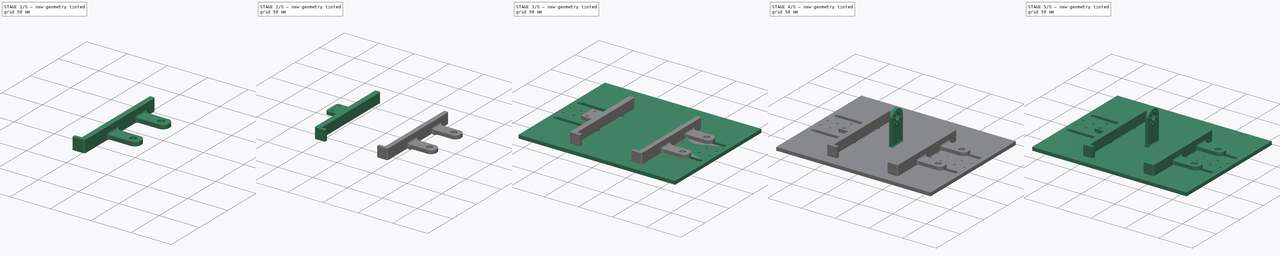
[diagram: build sequence overview — one tinted view per stage of 5, left to right]
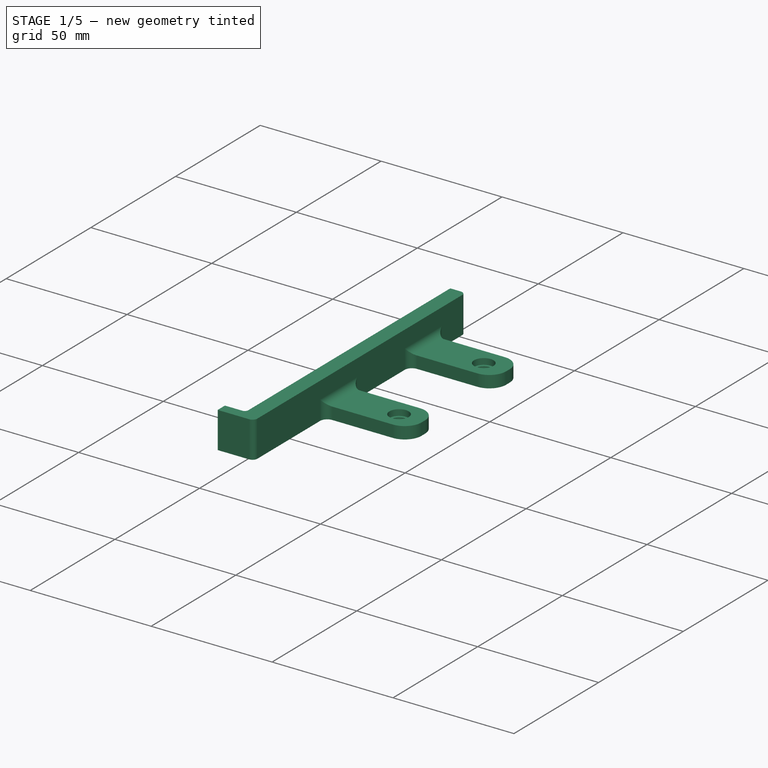
[diagram: stage 1 of 5 — iso view after this stage's code; geometry added in this stage tinted green]
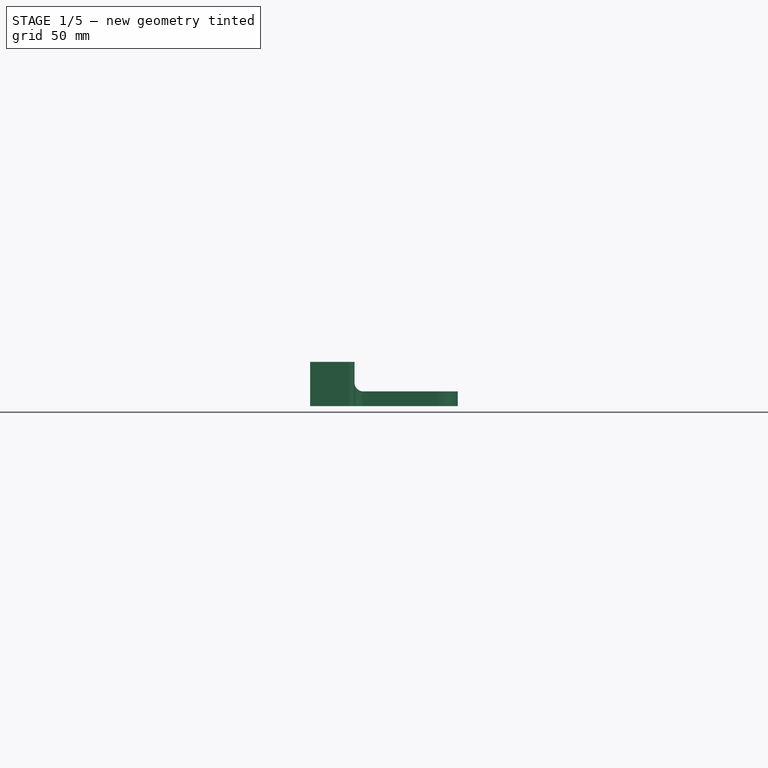
[diagram: stage 1 of 5 — front view after this stage's code; geometry added in this stage tinted green]
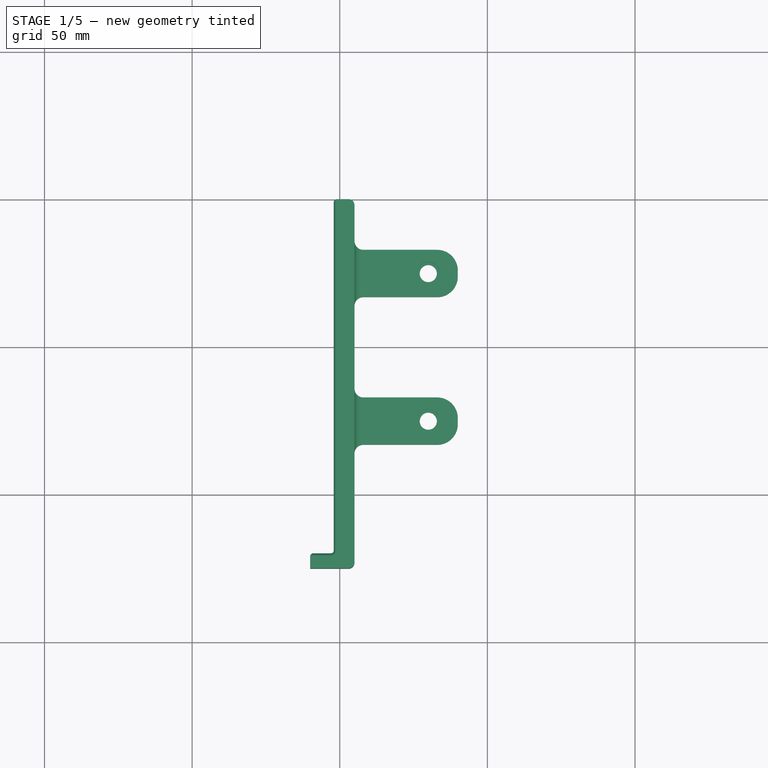
[diagram: stage 1 of 5 — top view after this stage's code; geometry added in this stage tinted green]
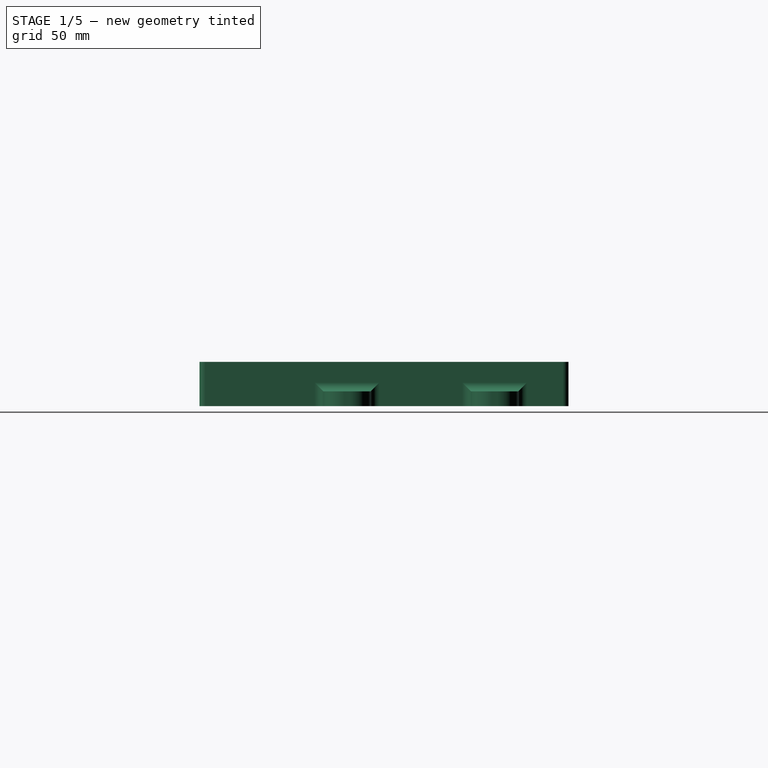
[diagram: stage 1 of 5 — right view after this stage's code; geometry added in this stage tinted green]
FCSTD DOCUMENT  (FreeCAD 1.1R20260414 (Git shallow))
Label: Unnamed1
License: All rights reserved
LicenseURL: https://en.wikipedia.org/wiki/All_rights_reserved
objects: Sketcher::SketchObject×25, PartDesign::Pad×13, PartDesign::Hole×11, PartDesign::Fillet×10, App::Point×5, PartDesign::Body×5, PartDesign::Mirrored×2, TechDraw::DrawViewDimension×2, PartDesign::ShapeBinder×2, PartDesign::Pocket×1, TechDraw::DrawSVGTemplate×1, TechDraw::DrawProjGroupItem×1, TechDraw::DrawPage×1
note: 168 computed .brp shape members not serialized (recipe doc carries the construction recipe); baked Part::Feature solids carry a one-line shape summary decoded from their .brp

FEATURE [PartDesign::Body] Body004  label="Body001"
  AllowCompound = true
  Group = -> [CopyMirrored001,Sketch027,Pad009,Sketch028,Pad010,Fillet002,Fillet003,Sketch029,Hole012,Fillet004,Fillet005,Sketch030,Pad011]
  Origin = -> Origin016
  Tip = -> Pad011
FEATURE [App::Point] Origin019  label="Origin021"
  Role = Origin
FEATURE [PartDesign::ShapeBinder] CopyMirrored002
  TraceSupport = false
FEATURE [Sketcher::SketchObject] Sketch031
  ArcFitTolerance = 1e-06
  AttachmentSupport = -> [CopyMirrored002]
  ExternalTypes = [0]
  FullyConstrained = true
  MakeInternals = false
  MapMode = 5
  Placement = pos=(0,0,5) rot=(0,0,1;0rad)
  _ExternalGeoVersion = 1
  sketch-geometry (6):
    g0: LineSegment StartX=55 StartY=50 StartZ=0 EndX=48 EndY=50 EndZ=0
    g1: LineSegment StartX=48 StartY=50 StartZ=0 EndX=48 EndY=-70 EndZ=0
    g2: LineSegment StartX=55 StartY=-75 StartZ=0 EndX=55 EndY=50 EndZ=0
    g3: LineSegment StartX=48 StartY=-70 StartZ=0 EndX=40 EndY=-70 EndZ=0
    g4: LineSegment StartX=40 StartY=-70 StartZ=0 EndX=40 EndY=-75 EndZ=0
    g5: LineSegment StartX=40 StartY=-75 StartZ=0 EndX=55 EndY=-75 EndZ=0
  constraints (18):
    c: Coincident(g0,g1)
    c: Coincident(g2,g0)
    c: Horizontal(g0)
    c: Vertical(g2)
    c: Distance(g1,g2) = 7
    c: Coincident(g3,g4)
    c: Coincident(g4,g5)
    c: Vertical(g4)
    c: Horizontal(g5)
    c: Distance(g5,g4) = 15
    c: Coincident(g5,g2)
    c: Vertical(g1)
    c: Horizontal(g3)
    c: Coincident(g1,g3)
    c: Distance(g-1,g0) = 50
    c: Distance(g-1,g5) = 75
    c: Distance(g-2,g2) = 55
    c: Distance(g-1,g3) = 70
FEATURE [PartDesign::Pad] Pad012
  Direction = (0,0,1)
  Length = 15
  Length2 = 10
  Profile = -> Sketch031
  ReferenceAxis = -> Sketch031 [N_Axis]
  Refine = true
  SideType = 0
  Suppressed = false
  Type = 0
  Type2 = 0
FEATURE [PartDesign::Fillet] Fillet006
  Base = -> Pad012 [Face3,Face2]
  BaseFeature = -> Pad012
  Radius = 1
  Refine = true
  SupportTransform = false
  Suppressed = false
  UseAllEdges = false
FEATURE [PartDesign::Fillet] Fillet007
  Base = -> Fillet006 [Edge14,Edge3]
  BaseFeature = -> Fillet006
  Radius = 2
  Refine = true
  SupportTransform = false
  Suppressed = false
  UseAllEdges = false
FEATURE [Sketcher::SketchObject] Sketch032
  ArcFitTolerance = 1e-06
  AttachmentSupport = -> [Fillet007]
  ExternalTypes = [0]
  FullyConstrained = true
  MakeInternals = false
  MapMode = 5
  Placement = pos=(0,0,5) rot=(1,0,0;3.14159rad)
  _ExternalGeoVersion = 1
  sketch-geometry (8):
    g0: LineSegment StartX=55 StartY=33 StartZ=0 EndX=55 EndY=17 EndZ=0
    g1: LineSegment StartX=55 StartY=17 StartZ=0 EndX=90 EndY=17 EndZ=0
    g2: LineSegment StartX=90 StartY=17 StartZ=0 EndX=90 EndY=33 EndZ=0
    g3: LineSegment StartX=90 StartY=33 StartZ=0 EndX=55 EndY=33 EndZ=0
    g4: LineSegment StartX=55 StartY=-17 StartZ=0 EndX=55 EndY=-33 EndZ=0
    g5: LineSegment StartX=55 StartY=-33 StartZ=0 EndX=90 EndY=-33 EndZ=0
    g6: LineSegment StartX=90 StartY=-33 StartZ=0 EndX=90 EndY=-17 EndZ=0
    g7: LineSegment StartX=90 StartY=-17 StartZ=0 EndX=55 EndY=-17 EndZ=0
  constraints (24):
    c: Coincident(g0,g1)
    c: Coincident(g1,g2)
    c: Coincident(g2,g3)
    c: Coincident(g3,g0)
    c: Vertical(g0)
    c: Vertical(g2)
    c: Horizontal(g1)
    c: Horizontal(g3)
    c: Distance(g0,g2) = 35
    c: Distance(g1,g3) = 16
    c: Coincident(g4,g5)
    c: Coincident(g5,g6)
    c: Coincident(g6,g7)
    c: Coincident(g7,g4)
    c: Vertical(g4)
    c: Vertical(g6)
    c: Horizontal(g5)
    c: Horizontal(g7)
    c: Distance(g4,g6) = 35
    c: Distance(g5,g7) = 16
    c: Distance(g-1,g1) = 17
    c: Distance(g-1,g7) = 17
    c: Distance(g-2,g0) = 55
    c: Distance(g-2,g4) = 55
FEATURE [PartDesign::Pad] Pad013
  BaseFeature = -> Fillet007
  Direction = (0,0,-1)
  Length = 5
  Length2 = 10
  Profile = -> Sketch032
  ReferenceAxis = -> Sketch032 [N_Axis]
  Refine = true
  Reversed = true
  SideType = 0
  Suppressed = false
  Type = 0
  Type2 = 0
FEATURE [PartDesign::Fillet] Fillet008
  Base = -> Pad013 [Edge23,Edge22,Edge24,Edge26,Edge27,Edge28]
  BaseFeature = -> Pad013
  Radius = 3
  Refine = true
  SupportTransform = false
  Suppressed = false
  UseAllEdges = false
FEATURE [PartDesign::Fillet] Fillet009
  Base = -> Fillet008 [Edge68,Edge66,Edge54,Edge51]
  BaseFeature = -> Fillet008
  Radius = 7
  Refine = true
  SupportTransform = false
  Suppressed = false
  UseAllEdges = false
FEATURE [Sketcher::SketchObject] Sketch033
  ArcFitTolerance = 1e-06
  AttachmentSupport = -> [Fillet009]
  ExternalGeometry = -> [Fillet009]
  ExternalTypes = [0]
  FullyConstrained = true
  MakeInternals = false
  MapMode = 5
  Placement = pos=(0,0,10) rot=(0,0,1;0rad)
  _ExternalGeoVersion = 1
  sketch-geometry (2):
    g0: Circle CenterX=80 CenterY=25 CenterZ=0 NormalX=0 NormalY=0 NormalZ=1 AngleXU=0 Radius=2.5
    g1: Circle CenterX=80 CenterY=-25 CenterZ=0 NormalX=0 NormalY=0 NormalZ=1 AngleXU=0 Radius=2.5
  constraints (6):
    c: Diameter(g0) = 5
    c: Distance(g0,g-1) = 25
    c: Distance(g0,g-2) = 80
    c: Equal(g0,g1)
    c: Distance(g1,g-1) = 25
    c: Distance(g1,g-2) = 80
FEATURE [PartDesign::Hole] Hole013
  BaseFeature = -> Fillet009
  BaseProfileType = 7
  CustomThreadClearance = 0
  Depth = 5
  DepthType = 0
  Diameter = 5.8
  DrillForDepth = false
  DrillPoint = 0
  DrillPointAngle = 118
  HoleCutCountersinkAngle = 90
  HoleCutCustomValues = false
  HoleCutDepth = 2.5
  HoleCutDiameter = 8
  HoleCutType = 1
  ModelThread = false
  Profile = -> Sketch033
  Refine = true
  Suppressed = false
  Tapered = false
  TaperedAngle = 90
  ThreadClass = 0
  ThreadDepth = 5
  ThreadDepthType = 0
  ThreadDiameter = 5
  ThreadDirection = 0
  ThreadFit = 2
  ThreadSize = 13
  ThreadType = 1
  Threaded = false
  UseCustomThreadClearance = false
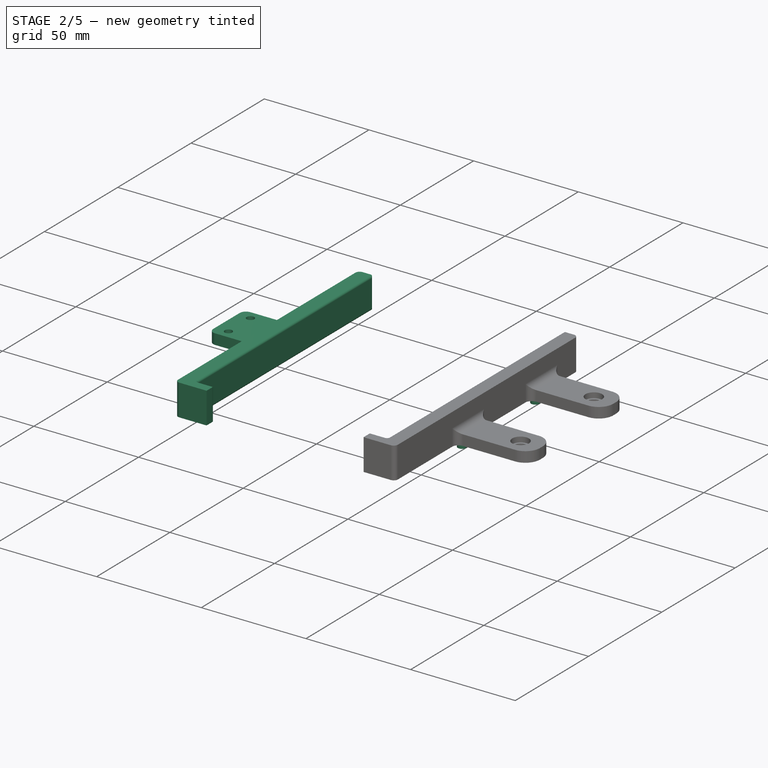
[diagram: stage 2 of 5 — iso view after this stage's code; geometry added in this stage tinted green]
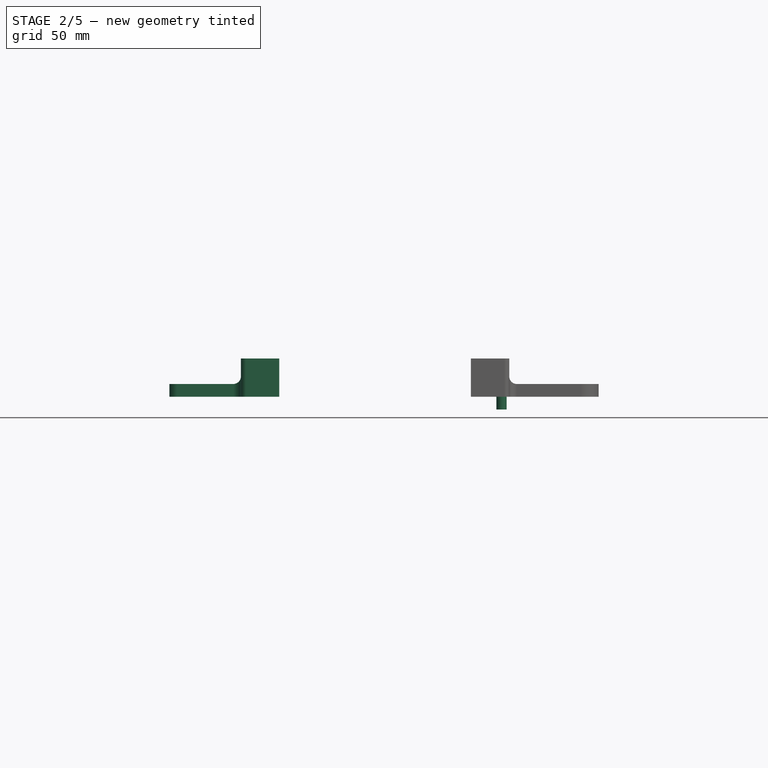
[diagram: stage 2 of 5 — front view after this stage's code; geometry added in this stage tinted green]
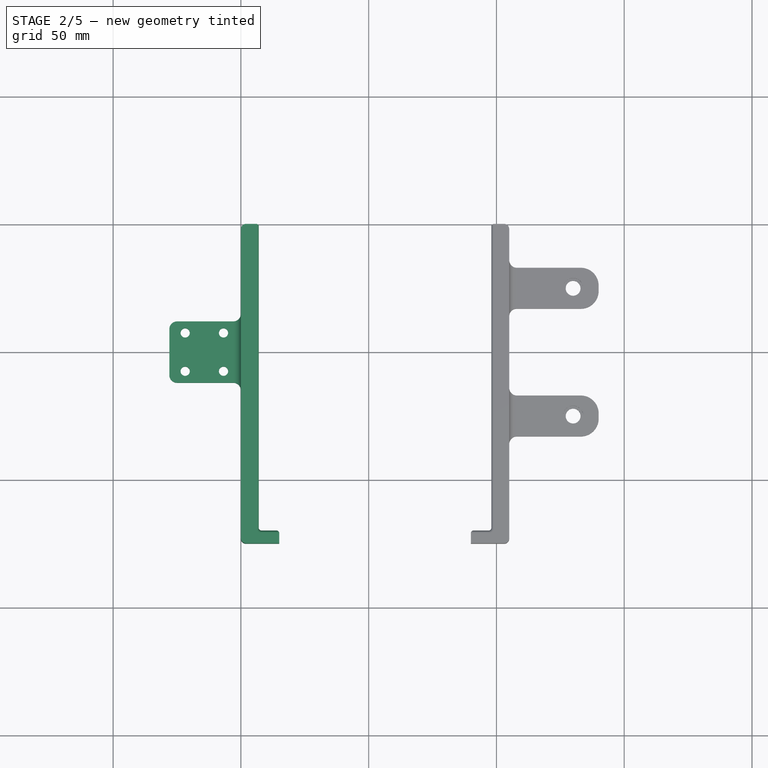
[diagram: stage 2 of 5 — top view after this stage's code; geometry added in this stage tinted green]
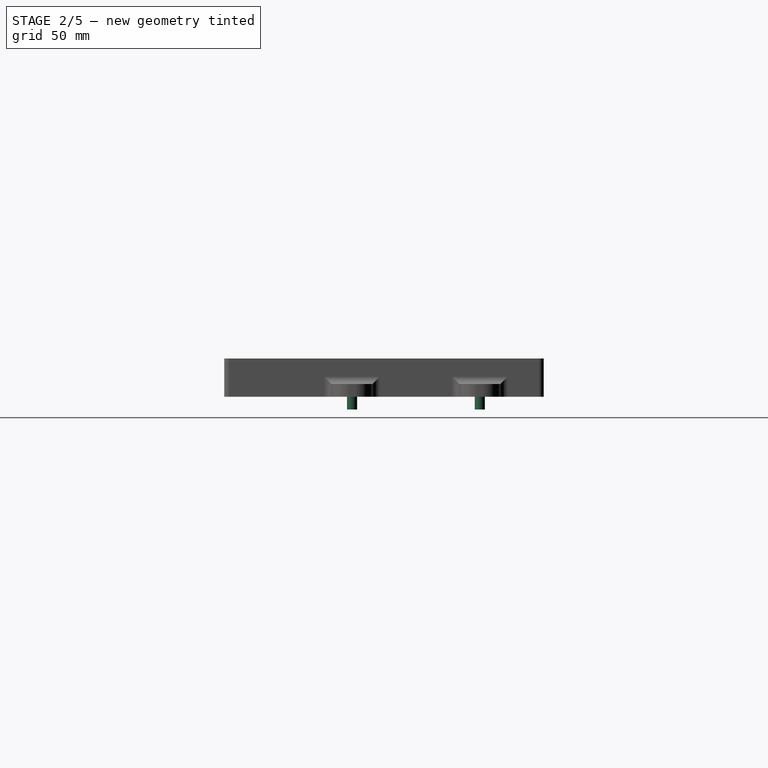
[diagram: stage 2 of 5 — right view after this stage's code; geometry added in this stage tinted green]
FEATURE [PartDesign::Body] Body
  AllowCompound = true
  Group = -> [Sketch,Pad,Sketch001,Hole,Mirrored,Sketch026,Pocket,Mirrored001]
  Origin = -> Origin
  Tip = -> Mirrored001
FEATURE [TechDraw::DrawSVGTemplate] Template
  Height = 210
  Orientation = 1
  Template = <path>
  Width = 297
FEATURE [TechDraw::DrawProjGroupItem] View
  CoarseView = false
  Direction = (0,0,1)
  Focus = 100
  HardHidden = false
  IsoCount = 0
  IsoHidden = false
  IsoVisible = false
  LockPosition = false
  Perspective = false
  Rotation = 0
  RotationVector = (1,0,0)
  ScaleType = 0
  ScrubCount = 1
  SeamHidden = false
  SeamVisible = false
  SmoothHidden = false
  SmoothVisible = true
  Source = -> [Body]
  Type = 0
  X = 148.5
  XDirection = (1,0,0)
  Y = 105
FEATURE [TechDraw::DrawViewDimension] Dimension
  AngleOverride = false
  Arbitrary = false
  ArbitraryTolerances = false
  BoxCorners = (2) [(-114.3,-90,0),(114.3,90,0)]
  EqualTolerance = true
  ExtensionAngle = 0
  FormatSpec = %.2w
  FormatSpecOverTolerance = %+.2w
  FormatSpecUnderTolerance = %+.2w
  Inverted = false
  LineAngle = 0
  LockPosition = false
  MeasureType = 1
  OverTolerance = 0
  References2D = -> [View]
  Rotation = 0
  ScaleType = 0
  ShowUnits = false
  TheoreticalExact = false
  Type = 2
  UnderTolerance = 0
  UseActualArea = true
  X = -138.027
  Y = -5.66711
FEATURE [TechDraw::DrawViewDimension] Dimension001
  AngleOverride = false
  Arbitrary = false
  ArbitraryTolerances = false
  BoxCorners = (2) [(-114.3,-90,0),(114.3,90,0)]
  EqualTolerance = true
  ExtensionAngle = 0
  FormatSpec = %.2w
  FormatSpecOverTolerance = %+.2w
  FormatSpecUnderTolerance = %+.2w
  Inverted = false
  LineAngle = 0
  LockPosition = false
  MeasureType = 1
  OverTolerance = 0
  References2D = -> [View]
  Rotation = 0
  ScaleType = 0
  ShowUnits = false
  TheoreticalExact = false
  Type = 1
  UnderTolerance = 0
  UseActualArea = true
  X = -8.01384
  Y = 102.586
FEATURE [TechDraw::DrawPage] Page
  KeepUpdated = true
  NextBalloonIndex = 1
  ProjectionType = 0
  Template = -> Template
  Views = -> [View,Dimension,Dimension001]
FEATURE [App::Point] Origin017  label="Origin019"
  Role = Origin
FEATURE [PartDesign::ShapeBinder] CopyMirrored001
  TraceSupport = false
FEATURE [Sketcher::SketchObject] Sketch027
  ArcFitTolerance = 1e-06
  AttachmentSupport = -> [CopyMirrored001]
  ExternalTypes = [0]
  FullyConstrained = true
  MakeInternals = false
  MapMode = 5
  Placement = pos=(0,0,5) rot=(0,0,1;0rad)
  _ExternalGeoVersion = 1
  sketch-geometry (6):
    g0: LineSegment StartX=-50 StartY=50 StartZ=0 EndX=-50 EndY=-75 EndZ=0
    g1: LineSegment StartX=-43 StartY=-70 StartZ=0 EndX=-43 EndY=50 EndZ=0
    g2: LineSegment StartX=-43 StartY=50 StartZ=0 EndX=-50 EndY=50 EndZ=0
    g3: LineSegment StartX=-50 StartY=-75 StartZ=0 EndX=-35 EndY=-75 EndZ=0
    g4: LineSegment StartX=-35 StartY=-75 StartZ=0 EndX=-35 EndY=-70 EndZ=0
    g5: LineSegment StartX=-35 StartY=-70 StartZ=0 EndX=-43 EndY=-70 EndZ=0
  constraints (18):
    c: Coincident(g1,g2)
    c: Coincident(g2,g0)
    c: Vertical(g0)
    c: Horizontal(g2)
    c: Distance(g-2,g0) = 50
    c: Distance(g2,g2) = 7
    c: Coincident(g3,g4)
    c: Coincident(g4,g5)
    c: Horizontal(g3)
    c: Vertical(g4)
    c: Distance(g4,g3) = 15
    c: Coincident(g3,g0)
    c: Vertical(g1)
    c: Horizontal(g5)
    c: Coincident(g1,g5)
    c: Distance(g-1,g3) = 75
    c: Distance(g-1,g5) = 70
    c: Distance(g-1,g2) = 50
FEATURE [PartDesign::Pad] Pad009
  Direction = (0,0,1)
  Length = 15
  Length2 = 10
  Profile = -> Sketch027
  ReferenceAxis = -> Sketch027 [N_Axis]
  Refine = true
  SideType = 0
  Suppressed = false
  Type = 0
  Type2 = 0
FEATURE [Sketcher::SketchObject] Sketch028
  ArcFitTolerance = 1e-06
  AttachmentSupport = -> [Pad009]
  ExternalTypes = [0]
  FullyConstrained = true
  MakeInternals = false
  MapMode = 5
  Placement = pos=(0,0,5) rot=(1,0,0;3.14159rad)
  _ExternalGeoVersion = 1
  sketch-geometry (4):
    g0: LineSegment StartX=-50 StartY=12 StartZ=0 EndX=-78 EndY=12 EndZ=0
    g1: LineSegment StartX=-78 StartY=12 StartZ=0 EndX=-78 EndY=-12 EndZ=0
    g2: LineSegment StartX=-78 StartY=-12 StartZ=0 EndX=-50 EndY=-12 EndZ=0
    g3: LineSegment StartX=-50 StartY=-12 StartZ=0 EndX=-50 EndY=12 EndZ=0
  constraints (12):
    c: Coincident(g0,g1)
    c: Coincident(g1,g2)
    c: Coincident(g2,g3)
    c: Coincident(g3,g0)
    c: Horizontal(g0)
    c: Horizontal(g2)
    c: Vertical(g1)
    c: Vertical(g3)
    c: Distance(g1,g3) = 28
    c: Distance(g0,g2) = 24
    c: Distance(g-1,g2) = 12
    c: Distance(g-2,g3) = 50
FEATURE [PartDesign::Pad] Pad010
  BaseFeature = -> Pad009
  Direction = (0,0,-1)
  Length = 5
  Length2 = 10
  Profile = -> Sketch028
  ReferenceAxis = -> Sketch028 [N_Axis]
  Refine = true
  Reversed = true
  SideType = 0
  Suppressed = false
  Type = 0
  Type2 = 0
FEATURE [PartDesign::Fillet] Fillet002
  Base = -> Pad010 [Edge4,Edge3,Edge2]
  BaseFeature = -> Pad010
  Radius = 3
  Refine = true
  SupportTransform = false
  Suppressed = false
  UseAllEdges = false
FEATURE [PartDesign::Fillet] Fillet003
  Base = -> Fillet002 [Edge31,Edge34]
  BaseFeature = -> Fillet002
  Radius = 3
  Refine = true
  SupportTransform = false
  Suppressed = false
  UseAllEdges = false
FEATURE [Sketcher::SketchObject] Sketch029
  ArcFitTolerance = 1e-06
  AttachmentSupport = -> [Fillet003]
  ExternalTypes = [0]
  FullyConstrained = true
  MakeInternals = false
  MapMode = 5
  Placement = pos=(0,0,10) rot=(0,0,1;0rad)
  _ExternalGeoVersion = 1
  sketch-geometry (4):
    g0: Circle CenterX=-71.81 CenterY=7.5 CenterZ=0 NormalX=0 NormalY=0 NormalZ=1 AngleXU=0 Radius=1.5
    g1: Circle CenterX=-56.81 CenterY=7.5 CenterZ=0 NormalX=0 NormalY=0 NormalZ=1 AngleXU=0 Radius=1.5
    g2: Circle CenterX=-71.81 CenterY=-7.5 CenterZ=0 NormalX=0 NormalY=0 NormalZ=1 AngleXU=0 Radius=1.5
    g3: Circle CenterX=-56.81 CenterY=-7.5 CenterZ=0 NormalX=0 NormalY=0 NormalZ=1 AngleXU=0 Radius=1.5
  constraints (12):
    c: Diameter(g0) = 3
    c: Distance(g0,g-1) = 7.5
    c: Equal(g1,g0)
    c: Equal(g0,g2)
    c: Equal(g2,g3)
    c: Distance(g1,g-1) = 7.5
    c: DistanceX(g0,g1) = 15
    c: Distance(g2,g-1) = 7.5
    c: Distance(g3,g-1) = 7.5
    c: DistanceX(g2,g3) = 15
    c: DistanceX(g0,g-1) = 71.81
    c: DistanceX(g2,g-1) = 71.81
FEATURE [PartDesign::Hole] Hole012
  BaseFeature = -> Fillet003
  BaseProfileType = 7
  CustomThreadClearance = 0
  Depth = 5
  DepthType = 0
  Diameter = 3.6
  DrillForDepth = false
  DrillPoint = 0
  DrillPointAngle = 118
  HoleCutCountersinkAngle = 90
  HoleCutCustomValues = false
  HoleCutDepth = 0
  HoleCutDiameter = 0
  HoleCutType = 0
  ModelThread = false
  Profile = -> Sketch029
  Refine = true
  Suppressed = false
  Tapered = false
  TaperedAngle = 90
  ThreadClass = 0
  ThreadDepth = 5
  ThreadDepthType = 0
  ThreadDiameter = 3
  ThreadDirection = 0
  ThreadFit = 2
  ThreadSize = 9
  ThreadType = 1
  Threaded = false
  UseCustomThreadClearance = false
FEATURE [PartDesign::Fillet] Fillet004
  Base = -> Hole012 [Face12,Face10]
  BaseFeature = -> Hole012
  Radius = 1
  Refine = true
  SupportTransform = false
  Suppressed = false
  UseAllEdges = false
FEATURE [PartDesign::Fillet] Fillet005
  Base = -> Fillet004 [Edge30,Edge21]
  BaseFeature = -> Fillet004
  Radius = 2
  Refine = true
  SupportTransform = false
  Suppressed = false
  UseAllEdges = false
FEATURE [Sketcher::SketchObject] Sketch034
  ArcFitTolerance = 1e-06
  AttachmentSupport = -> [Hole013]
  ExternalTypes = [0]
  FullyConstrained = true
  MakeInternals = false
  MapMode = 5
  Placement = pos=(0,0,5) rot=(1,0,0;3.14159rad)
  _ExternalGeoVersion = 1
  sketch-geometry (2):
    g0: Circle CenterX=52 CenterY=25 CenterZ=0 NormalX=0 NormalY=0 NormalZ=1 AngleXU=0 Radius=2
    g1: Circle CenterX=52 CenterY=-25 CenterZ=0 NormalX=0 NormalY=0 NormalZ=1 AngleXU=0 Radius=2
  constraints (6):
    c: Diameter(g0) = 4
    c: Distance(g0,g-2) = 52
    c: Distance(g0,g-1) = 25
    c: Equal(g1,g0)
    c: Distance(g1,g-2) = 52
    c: Distance(g1,g-1) = 25
FEATURE [PartDesign::Pad] Pad014
  BaseFeature = -> Hole013
  Direction = (0,0,-1)
  Length = 5
  Length2 = 10
  Profile = -> Sketch034
  ReferenceAxis = -> Sketch034 [N_Axis]
  Refine = true
  SideType = 0
  Suppressed = false
  Type = 0
  Type2 = 0
FEATURE [PartDesign::Body] Body005  label="Body002"
  AllowCompound = true
  Group = -> [CopyMirrored002,Sketch031,Pad012,Fillet006,Fillet007,Sketch032,Pad013,Fillet008,Fillet009,Sketch033,Hole013,Sketch034,Pad014]
  Origin = -> Origin018
  Tip = -> Pad014
note: 1 file-system path scrubbed to <path> (originals preserved in the JSON sidecar)
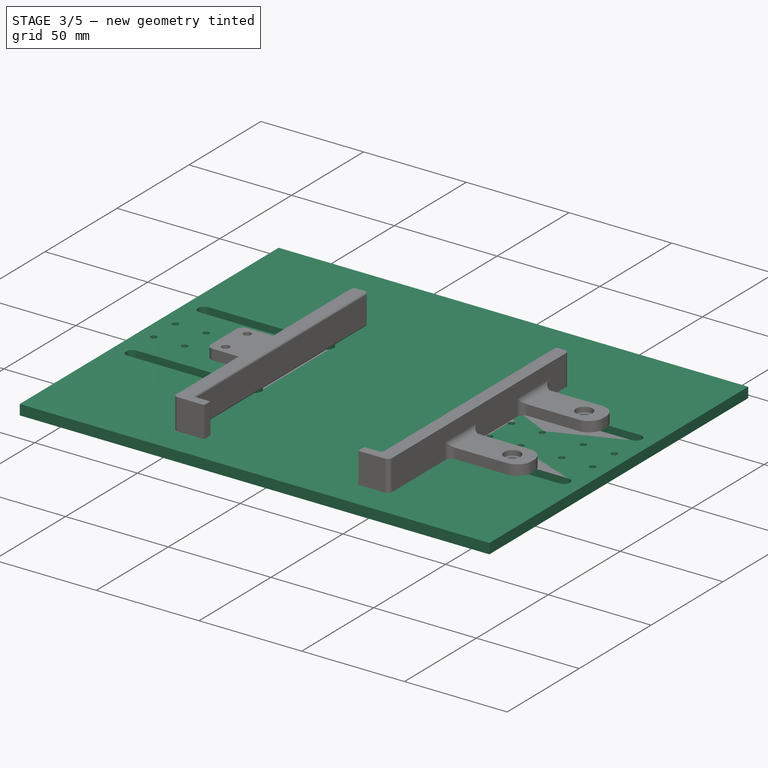
[diagram: stage 3 of 5 — iso view after this stage's code; geometry added in this stage tinted green]
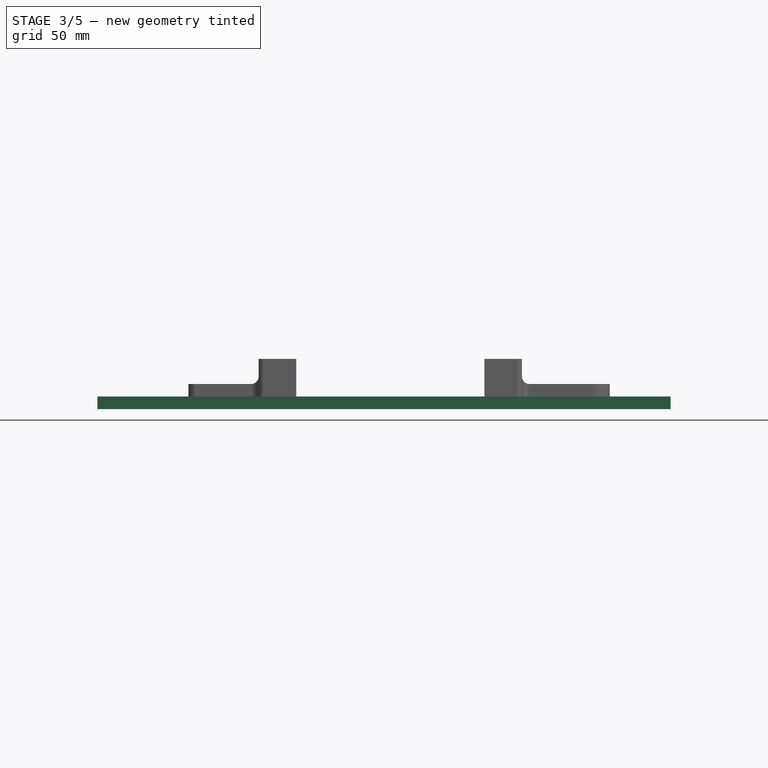
[diagram: stage 3 of 5 — front view after this stage's code; geometry added in this stage tinted green]
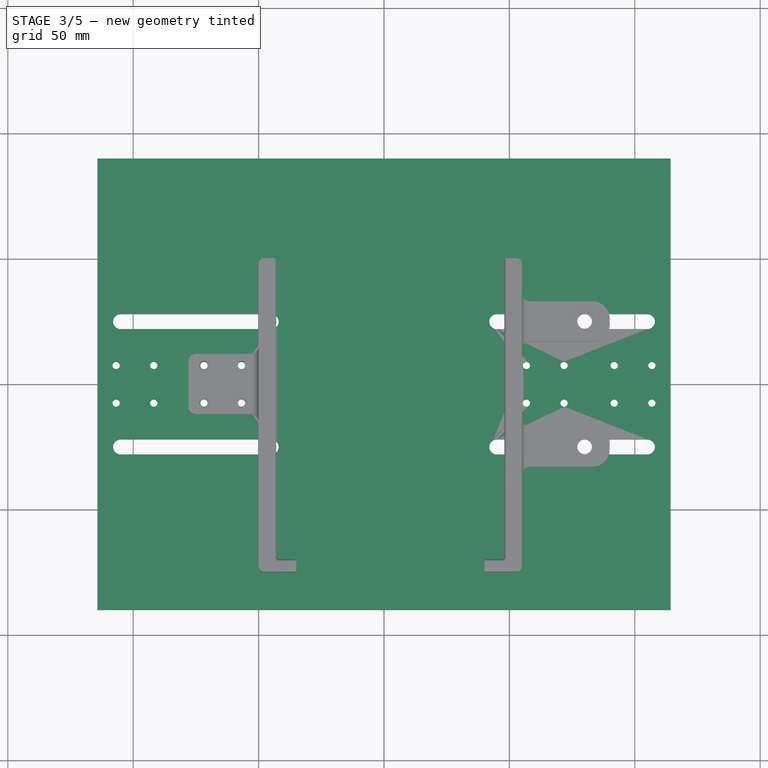
[diagram: stage 3 of 5 — top view after this stage's code; geometry added in this stage tinted green]
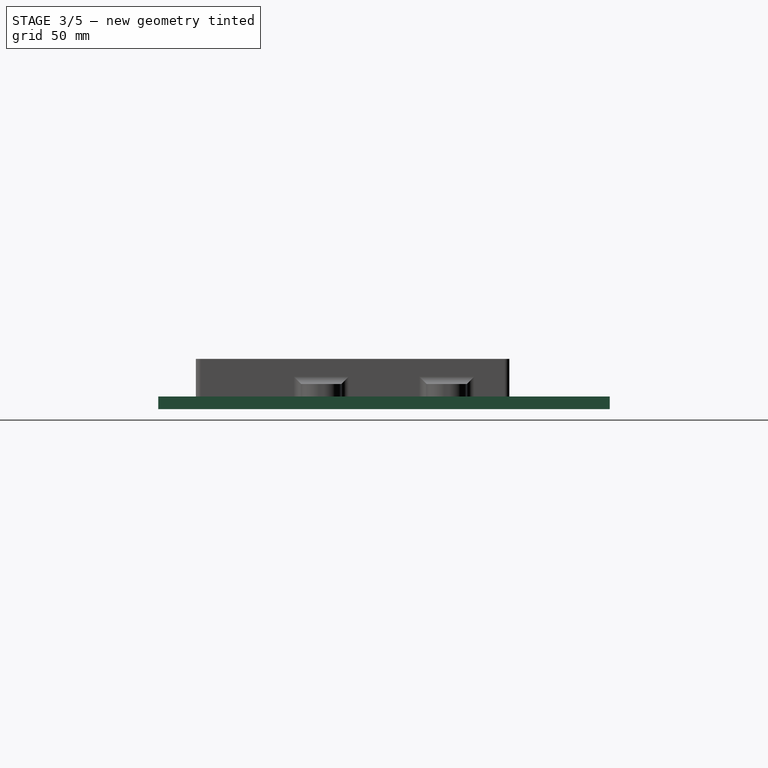
[diagram: stage 3 of 5 — right view after this stage's code; geometry added in this stage tinted green]
FEATURE [App::Point] Origin001
  Role = Origin
FEATURE [Sketcher::SketchObject] Sketch
  ArcFitTolerance = 1e-06
  AttachmentSupport = -> [Origin]
  ExternalTypes = [0]
  FullyConstrained = true
  MakeInternals = false
  MapMode = 5
  _ExternalGeoVersion = 1
  sketch-geometry (5):
    g0: LineSegment StartX=-114.3 StartY=-90 StartZ=0 EndX=114.3 EndY=-90 EndZ=0
    g1: LineSegment StartX=114.3 StartY=-90 StartZ=0 EndX=114.3 EndY=90 EndZ=0
    g2: LineSegment StartX=114.3 StartY=90 StartZ=0 EndX=-114.3 EndY=90 EndZ=0
    g3: LineSegment StartX=-114.3 StartY=90 StartZ=0 EndX=-114.3 EndY=-90 EndZ=0
    g4: GeomPoint [constr] X=0 Y=0 Z=0
  constraints (12):
    c: Coincident(g0,g1)
    c: Coincident(g1,g2)
    c: Coincident(g2,g3)
    c: Coincident(g3,g0)
    c: Horizontal(g0)
    c: Horizontal(g2)
    c: Vertical(g1)
    c: Vertical(g3)
    c: Symmetric(g2,g0,g4)
    c: Distance(g1,g3) = 228.6
    c: Distance(g0,g2) = 180
    c: Coincident(g4,g-1)
FEATURE [PartDesign::Pad] Pad
  Direction = (0,0,1)
  Length = 5
  Length2 = 10
  Profile = -> Sketch
  ReferenceAxis = -> Sketch [N_Axis]
  Refine = true
  SideType = 0
  Suppressed = false
  Type = 0
  Type2 = 0
FEATURE [Sketcher::SketchObject] Sketch001
  ArcFitTolerance = 1e-06
  AttachmentSupport = -> [Pad]
  ExternalTypes = [0]
  FullyConstrained = true
  MakeInternals = false
  MapMode = 5
  Placement = pos=(0,0,5) rot=(0,0,1;0rad)
  _ExternalGeoVersion = 1
  sketch-geometry (8):
    g0: Circle CenterX=106.8 CenterY=7.5 CenterZ=0 NormalX=0 NormalY=0 NormalZ=1 AngleXU=0 Radius=1.1
    g1: Circle CenterX=106.8 CenterY=-7.5 CenterZ=0 NormalX=0 NormalY=0 NormalZ=1 AngleXU=0 Radius=1.1
    g2: Circle CenterX=91.8 CenterY=7.5 CenterZ=0 NormalX=0 NormalY=0 NormalZ=1 AngleXU=0 Radius=1.1
    g3: Circle CenterX=91.8 CenterY=-7.5 CenterZ=0 NormalX=0 NormalY=0 NormalZ=1 AngleXU=0 Radius=1.1
    g4: Circle CenterX=71.8 CenterY=7.5 CenterZ=0 NormalX=0 NormalY=0 NormalZ=1 AngleXU=0 Radius=1.1
    g5: Circle CenterX=71.8 CenterY=-7.5 CenterZ=0 NormalX=0 NormalY=0 NormalZ=1 AngleXU=0 Radius=1.1
    g6: Circle CenterX=56.8 CenterY=7.5 CenterZ=0 NormalX=0 NormalY=0 NormalZ=1 AngleXU=0 Radius=1.1
    g7: Circle CenterX=56.8 CenterY=-7.5 CenterZ=0 NormalX=0 NormalY=0 NormalZ=1 AngleXU=0 Radius=1.1
  constraints (24):
    c: Diameter(g1) = 2.2
    c: Equal(g0,g1)
    c: DistanceX(g-1,g0) = 106.8
    c: DistanceX(g-1,g1) = 106.8
    c: Equal(g0,g2)
    c: Equal(g2,g3)
    c: DistanceX(g-1,g2) = 91.8
    c: DistanceX(g-1,g3) = 91.8
    c: Distance(g2,g-1) = 7.5
    c: Distance(g3,g-1) = 7.5
    c: Distance(g0,g-1) = 7.5
    c: Distance(g1,g-1) = 7.5
    c: Equal(g2,g4)
    c: Equal(g3,g5)
    c: DistanceX(g4,g2) = 20
    c: DistanceX(g5,g3) = 20
    c: Distance(g4,g-1) = 7.5
    c: Distance(g5,g-1) = 7.5
    c: Equal(g5,g7)
    c: Equal(g7,g6)
    c: DistanceX(g6,g4) = 15
    c: DistanceX(g7,g5) = 15
    c: Distance(g7,g-1) = 7.5
    c: Distance(g6,g-1) = 7.5
FEATURE [PartDesign::Hole] Hole
  BaseFeature = -> Pad
  BaseProfileType = 7
  CustomThreadClearance = 0
  Depth = 5
  DepthType = 0
  Diameter = 2.9
  DrillForDepth = false
  DrillPoint = 1
  DrillPointAngle = 118
  HoleCutCountersinkAngle = 90
  HoleCutCustomValues = false
  HoleCutDepth = 0
  HoleCutDiameter = 0
  HoleCutType = 0
  ModelThread = false
  Profile = -> Sketch001
  Refine = true
  Suppressed = false
  Tapered = false
  TaperedAngle = 90
  ThreadClass = 0
  ThreadDepth = 5
  ThreadDepthType = 0
  ThreadDiameter = 2.5
  ThreadDirection = 0
  ThreadFit = 0
  ThreadSize = 8
  ThreadType = 1
  Threaded = false
  UseCustomThreadClearance = false
FEATURE [PartDesign::Mirrored] Mirrored
  BaseFeature = -> Hole
  MirrorPlane = -> Sketch001 [V_Axis]
  Originals = -> [Hole]
  Refine = true
  Suppressed = false
  TransformMode = 0
FEATURE [PartDesign::Body] Body002  label="horn_holder"
  AllowCompound = true
  Group = -> [Sketch012,Pad003,Sketch013,Hole005,Sketch014,Pad004,Fillet,Sketch015,Pad005,Sketch016,Hole006,Sketch017,Hole002,Sketch018,Hole007]
  Origin = -> Origin013
  Tip = -> Hole007
FEATURE [App::Point] Origin014  label="Origin016"
  Role = Origin
FEATURE [Sketcher::SketchObject] Sketch019
  ArcFitTolerance = 1e-06
  AttachmentSupport = -> [Origin015]
  ExternalTypes = [0]
  FullyConstrained = true
  MakeInternals = false
  MapMode = 5
  _ExternalGeoVersion = 1
  sketch-geometry (5):
    g0: LineSegment StartX=-12 StartY=-12 StartZ=0 EndX=12 EndY=-12 EndZ=0
    g1: LineSegment StartX=12 StartY=-12 StartZ=0 EndX=12 EndY=12 EndZ=0
    g2: LineSegment StartX=12 StartY=12 StartZ=0 EndX=-12 EndY=12 EndZ=0
    g3: LineSegment StartX=-12 StartY=12 StartZ=0 EndX=-12 EndY=-12 EndZ=0
    g4: GeomPoint [constr] X=0 Y=0 Z=0
  constraints (12):
    c: Coincident(g0,g1)
    c: Coincident(g1,g2)
    c: Coincident(g2,g3)
    c: Coincident(g3,g0)
    c: Horizontal(g0)
    c: Horizontal(g2)
    c: Vertical(g1)
    c: Vertical(g3)
    c: Symmetric(g2,g0,g4)
    c: Distance(g1,g3) = 24
    c: Distance(g0,g2) = 24
    c: Coincident(g4,g-1)
FEATURE [PartDesign::Pad] Pad006
  Direction = (0,0,1)
  Length = 5
  Length2 = 10
  Profile = -> Sketch019
  ReferenceAxis = -> Sketch019 [N_Axis]
  Refine = true
  SideType = 0
  Suppressed = false
  Type = 0
  Type2 = 0
FEATURE [PartDesign::Body] Body003  label="horn_holder001"
  AllowCompound = true
  Group = -> [Sketch019,Pad006,Sketch020,Hole009,Sketch021,Pad007,Fillet001,Sketch022,Pad008,Sketch023,Hole010,Sketch024,Hole008,Sketch025,Hole011]
  Origin = -> Origin015
  Tip = -> Hole011
FEATURE [Sketcher::SketchObject] Sketch026
  ArcFitTolerance = 1e-06
  AttachmentSupport = -> [Mirrored]
  ExternalTypes = [0]
  FullyConstrained = true
  MakeInternals = false
  MapMode = 5
  Placement = pos=(0,0,5) rot=(0,0,1;0rad)
  _ExternalGeoVersion = 1
  sketch-geometry (8):
    g0: ArcOfCircle CenterX=45 CenterY=-25 CenterZ=0 NormalX=0 NormalY=0 NormalZ=1 AngleXU=0 Radius=3 StartAngle=1.5708 EndAngle=4.71239
    g1: ArcOfCircle CenterX=105 CenterY=-25 CenterZ=0 NormalX=0 NormalY=0 NormalZ=1 AngleXU=0 Radius=3 StartAngle=4.71239 EndAngle=7.85398
    g2: LineSegment StartX=45 StartY=-22 StartZ=0 EndX=105 EndY=-22 EndZ=0
    g3: LineSegment StartX=45 StartY=-28 StartZ=0 EndX=105 EndY=-28 EndZ=0
    g4: ArcOfCircle CenterX=45 CenterY=25 CenterZ=0 NormalX=0 NormalY=0 NormalZ=1 AngleXU=0 Radius=3 StartAngle=1.5708 EndAngle=4.71239
    g5: ArcOfCircle CenterX=105 CenterY=25 CenterZ=0 NormalX=0 NormalY=0 NormalZ=1 AngleXU=0 Radius=3 StartAngle=4.71239 EndAngle=7.85398
    g6: LineSegment StartX=45 StartY=28 StartZ=0 EndX=105 EndY=28 EndZ=0
    g7: LineSegment StartX=45 StartY=22 StartZ=0 EndX=105 EndY=22 EndZ=0
  constraints (20):
    c: Tangent(g0,g2) = 1.5708
    c: Tangent(g0,g3) = -1.5708
    c: Tangent(g1,g2) = 1.5708
    c: Tangent(g1,g3) = -1.5708
    c: Equal(g0,g1)
    c: Distance(g0,g1) = 60
    c: Radius(g0) = 3
    c: Horizontal(g2)
    c: Distance(g-1,g2) = 22
    c: Distance(g0,g-2) = 45
    c: Tangent(g4,g6) = 1.5708
    c: Tangent(g4,g7) = -1.5708
    c: Tangent(g5,g6) = 1.5708
    c: Tangent(g5,g7) = -1.5708
    c: Equal(g4,g5)
    c: Distance(g4,g5) = 60
    c: Radius(g4) = 3
    c: Horizontal(g6)
    c: Distance(g-1,g7) = 22
    c: Distance(g4,g-2) = 45
FEATURE [PartDesign::Pocket] Pocket
  BaseFeature = -> Mirrored
  Direction = (0,0,-1)
  Length = 5
  Length2 = 5
  Profile = -> Sketch026
  ReferenceAxis = -> Sketch026 [N_Axis]
  Refine = true
  SideType = 0
  Suppressed = false
  Type = 0
  Type2 = 0
FEATURE [PartDesign::Mirrored] Mirrored001
  BaseFeature = -> Pocket
  MirrorPlane = -> Sketch026 [V_Axis]
  Originals = -> [Pocket]
  Refine = true
  Suppressed = false
  TransformMode = 0
FEATURE [Sketcher::SketchObject] Sketch030
  ArcFitTolerance = 1e-06
  AttachmentSupport = -> [Fillet005]
  ExternalTypes = [0]
  FullyConstrained = true
  MakeInternals = false
  MapMode = 5
  Placement = pos=(0,0,5) rot=(1,0,0;3.14159rad)
  _ExternalGeoVersion = 1
  sketch-geometry (2):
    g0: Circle CenterX=-47 CenterY=25 CenterZ=0 NormalX=0 NormalY=0 NormalZ=1 AngleXU=0 Radius=2
    g1: Circle CenterX=-47 CenterY=-25 CenterZ=0 NormalX=0 NormalY=0 NormalZ=1 AngleXU=0 Radius=2
  constraints (6):
    c: Distance(g0,g-1) = 25
    c: Distance(g0,g-2) = 47
    c: Diameter(g0) = 4
    c: Equal(g1,g0)
    c: Distance(g1,g-1) = 25
    c: DistanceX(g1,g-1) = 47
FEATURE [PartDesign::Pad] Pad011
  BaseFeature = -> Fillet005
  Direction = (0,0,-1)
  Length = 5
  Length2 = 10
  Profile = -> Sketch030
  ReferenceAxis = -> Sketch030 [N_Axis]
  Refine = true
  SideType = 0
  Suppressed = false
  Type = 0
  Type2 = 0
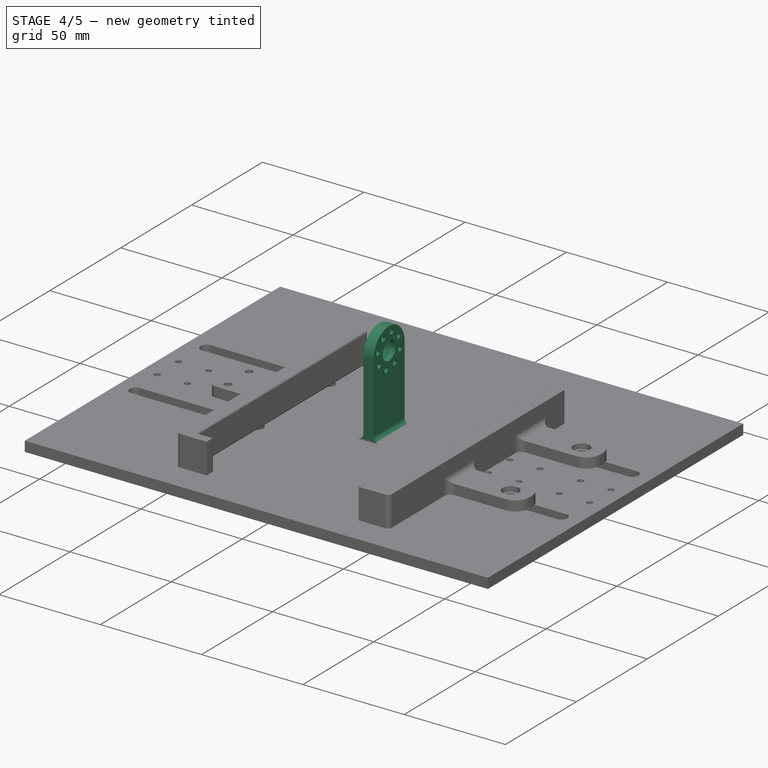
[diagram: stage 4 of 5 — iso view after this stage's code; geometry added in this stage tinted green]
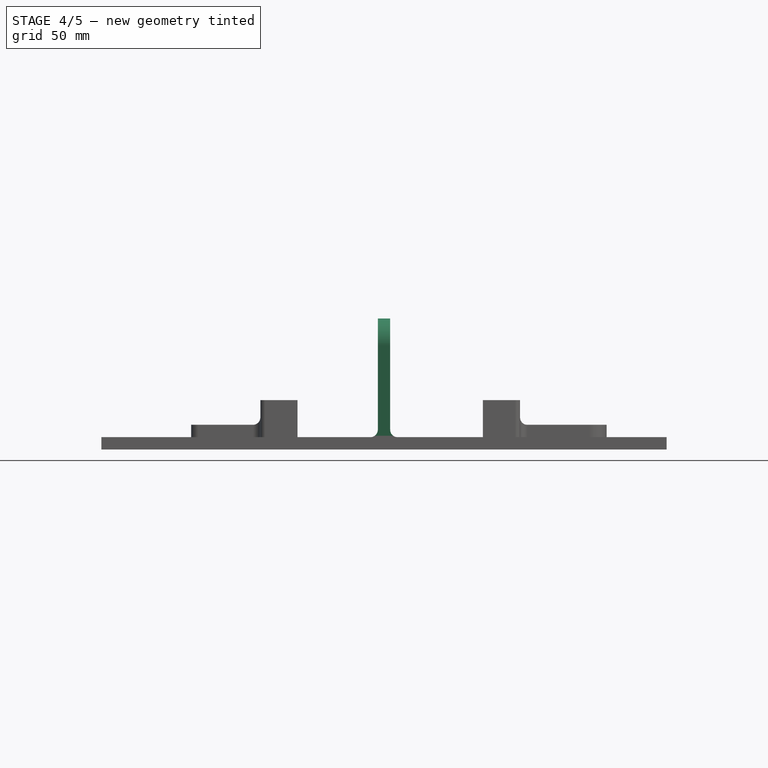
[diagram: stage 4 of 5 — front view after this stage's code; geometry added in this stage tinted green]
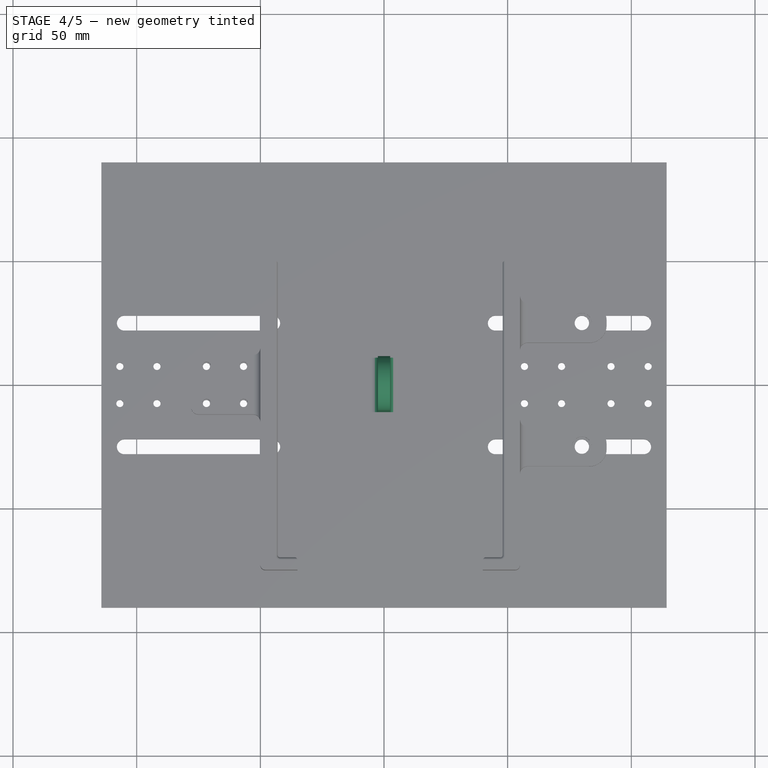
[diagram: stage 4 of 5 — top view after this stage's code; geometry added in this stage tinted green]
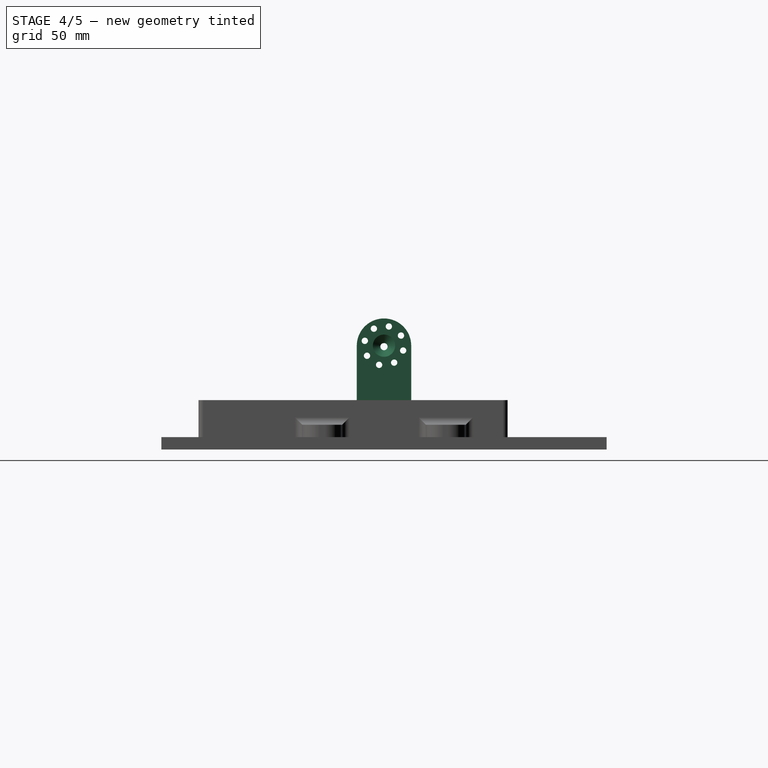
[diagram: stage 4 of 5 — right view after this stage's code; geometry added in this stage tinted green]
FEATURE [App::Point] Origin012  label="Origin014"
  Role = Origin
FEATURE [Sketcher::SketchObject] Sketch012
  ArcFitTolerance = 1e-06
  AttachmentSupport = -> [Origin013]
  ExternalTypes = [0]
  FullyConstrained = true
  MakeInternals = false
  MapMode = 5
  _ExternalGeoVersion = 1
  sketch-geometry (5):
    g0: LineSegment StartX=-12 StartY=-12 StartZ=0 EndX=12 EndY=-12 EndZ=0
    g1: LineSegment StartX=12 StartY=-12 StartZ=0 EndX=12 EndY=12 EndZ=0
    g2: LineSegment StartX=12 StartY=12 StartZ=0 EndX=-12 EndY=12 EndZ=0
    g3: LineSegment StartX=-12 StartY=12 StartZ=0 EndX=-12 EndY=-12 EndZ=0
    g4: GeomPoint [constr] X=0 Y=0 Z=0
  constraints (12):
    c: Coincident(g0,g1)
    c: Coincident(g1,g2)
    c: Coincident(g2,g3)
    c: Coincident(g3,g0)
    c: Horizontal(g0)
    c: Horizontal(g2)
    c: Vertical(g1)
    c: Vertical(g3)
    c: Symmetric(g2,g0,g4)
    c: Distance(g1,g3) = 24
    c: Distance(g0,g2) = 24
    c: Coincident(g4,g-1)
FEATURE [PartDesign::Pad] Pad003
  Direction = (0,0,1)
  Length = 5
  Length2 = 10
  Profile = -> Sketch012
  ReferenceAxis = -> Sketch012 [N_Axis]
  Refine = true
  SideType = 0
  Suppressed = false
  Type = 0
  Type2 = 0
FEATURE [Sketcher::SketchObject] Sketch020
  ArcFitTolerance = 1e-06
  AttachmentSupport = -> [Pad006]
  ExternalTypes = [0]
  FullyConstrained = true
  MakeInternals = false
  MapMode = 5
  Placement = pos=(0,0,5) rot=(0,0,1;0rad)
  _ExternalGeoVersion = 1
  sketch-geometry (5):
    g0: GeomPoint [constr] X=0 Y=0 Z=0
    g1: Circle CenterX=7.5 CenterY=7.5 CenterZ=0 NormalX=0 NormalY=0 NormalZ=1 AngleXU=0 Radius=1.1
    g2: Circle CenterX=-7.5 CenterY=7.5 CenterZ=0 NormalX=0 NormalY=0 NormalZ=1 AngleXU=0 Radius=1.1
    g3: Circle CenterX=-7.5 CenterY=-7.5 CenterZ=0 NormalX=0 NormalY=0 NormalZ=1 AngleXU=0 Radius=1.1
    g4: Circle CenterX=7.5 CenterY=-7.5 CenterZ=0 NormalX=0 NormalY=0 NormalZ=1 AngleXU=0 Radius=1.1
  constraints (12):
    c: Symmetric(g1,g3,g0)
    c: Distance(g4,g3) = 15
    c: Distance(g3,g2) = 15
    c: Coincident(g0,g-1)
    c: Diameter(g1) = 2.2
    c: Equal(g1,g2)
    c: Equal(g2,g3)
    c: Equal(g3,g4)
    c: DistanceX(g2,g1) = 15
    c: DistanceY(g4,g1) = 15
    c: Distance(g4,g-2) = 7.5
    c: Distance(g2,g-1) = 7.5
FEATURE [PartDesign::Hole] Hole009
  BaseFeature = -> Pad006
  BaseProfileType = 7
  CustomThreadClearance = 0
  Depth = 5
  DepthType = 0
  Diameter = 2.9
  DrillForDepth = false
  DrillPoint = 1
  DrillPointAngle = 118
  HoleCutCountersinkAngle = 90
  HoleCutCustomValues = false
  HoleCutDepth = 0
  HoleCutDiameter = 0
  HoleCutType = 0
  ModelThread = false
  Profile = -> Sketch020
  Refine = true
  Suppressed = false
  Tapered = false
  TaperedAngle = 90
  ThreadClass = 0
  ThreadDepth = 5
  ThreadDepthType = 0
  ThreadDiameter = 2.5
  ThreadDirection = 0
  ThreadFit = 0
  ThreadSize = 8
  ThreadType = 1
  Threaded = false
  UseCustomThreadClearance = false
FEATURE [Sketcher::SketchObject] Sketch021
  ArcFitTolerance = 1e-06
  AttachmentSupport = -> [Hole009]
  ExternalTypes = [0]
  FullyConstrained = true
  MakeInternals = false
  MapMode = 5
  Placement = pos=(0,0,5) rot=(0,0,1;0rad)
  _ExternalGeoVersion = 1
  sketch-geometry (5):
    g0: LineSegment StartX=-2.5 StartY=-11 StartZ=0 EndX=2.5 EndY=-11 EndZ=0
    g1: LineSegment StartX=2.5 StartY=-11 StartZ=0 EndX=2.5 EndY=11 EndZ=0
    g2: LineSegment StartX=2.5 StartY=11 StartZ=0 EndX=-2.5 EndY=11 EndZ=0
    g3: LineSegment StartX=-2.5 StartY=11 StartZ=0 EndX=-2.5 EndY=-11 EndZ=0
    g4: GeomPoint [constr] X=0 Y=0 Z=0
  constraints (12):
    c: Coincident(g0,g1)
    c: Coincident(g1,g2)
    c: Coincident(g2,g3)
    c: Coincident(g3,g0)
    c: Horizontal(g0)
    c: Horizontal(g2)
    c: Vertical(g1)
    c: Vertical(g3)
    c: Symmetric(g2,g0,g4)
    c: Distance(g1,g3) = 5
    c: Distance(g0,g2) = 22
    c: Coincident(g4,g-1)
FEATURE [PartDesign::Pad] Pad007
  BaseFeature = -> Hole009
  Direction = (0,0,1)
  Length = 37
  Length2 = 10
  Profile = -> Sketch021
  ReferenceAxis = -> Sketch021 [N_Axis]
  Refine = true
  SideType = 0
  Suppressed = false
  Type = 0
  Type2 = 0
FEATURE [PartDesign::Fillet] Fillet001
  Base = -> Pad007 [Edge23,Edge21]
  BaseFeature = -> Pad007
  Radius = 3
  Refine = true
  SupportTransform = false
  Suppressed = false
  UseAllEdges = false
FEATURE [Sketcher::SketchObject] Sketch022
  ArcFitTolerance = 1e-06
  AttachmentSupport = -> [Fillet001]
  ExternalTypes = [0,0]
  FullyConstrained = true
  MakeInternals = false
  MapMode = 5
  Placement = pos=(-2.5,0,0) rot=(0.57735,-0.57735,-0.57735;2.0944rad)
  _ExternalGeoVersion = 1
  sketch-geometry (2):
    g0: ArcOfCircle CenterX=6.6e-13 CenterY=42 CenterZ=0 NormalX=0 NormalY=0 NormalZ=1 AngleXU=0 Radius=11 StartAngle=0 EndAngle=3.14159
    g1: LineSegment StartX=-11 StartY=42 StartZ=0 EndX=11 EndY=42 EndZ=0
  constraints (7):
    c: Coincident(g1,g0)
    c: Coincident(g1,g0)
    c: DistanceY(g-1,g0) = 42
    c: DistanceY(g-1,g0) = 42
    c: Distance(g0,g-2) = 11
    c: Distance(g0,g-2) = 11
    c: Distance(g0,g-1) = 31
FEATURE [PartDesign::Pad] Pad008
  BaseFeature = -> Fillet001
  Direction = (-1,0,0)
  Length = 5
  Length2 = 10
  Profile = -> Sketch022
  ReferenceAxis = -> Sketch022 [N_Axis]
  Refine = true
  Reversed = true
  SideType = 0
  Suppressed = false
  Type = 0
  Type2 = 0
FEATURE [Sketcher::SketchObject] Sketch023
  ArcFitTolerance = 1e-06
  AttachmentSupport = -> [Pad008]
  ExternalTypes = [0]
  FullyConstrained = true
  MakeInternals = false
  MapMode = 5
  Placement = pos=(2.5,0,0) rot=(0.57735,0.57735,0.57735;2.0944rad)
  _ExternalGeoVersion = 1
  sketch-geometry (8):
    g0: Circle CenterX=-6.87 CenterY=37.91 CenterZ=0 NormalX=0 NormalY=0 NormalZ=1 AngleXU=0 Radius=0.75
    g1: Circle CenterX=-7.75 CenterY=43.96 CenterZ=0 NormalX=0 NormalY=0 NormalZ=1 AngleXU=0 Radius=0.75
    g2: Circle CenterX=-4.1 CenterY=48.87 CenterZ=0 NormalX=0 NormalY=0 NormalZ=1 AngleXU=0 Radius=0.75
    g3: Circle CenterX=1.96 CenterY=49.75 CenterZ=0 NormalX=0 NormalY=0 NormalZ=1 AngleXU=0 Radius=0.75
    g4: Circle CenterX=6.87 CenterY=46.09 CenterZ=0 NormalX=0 NormalY=0 NormalZ=1 AngleXU=0 Radius=0.75
    g5: Circle CenterX=7.75 CenterY=40.04 CenterZ=0 NormalX=0 NormalY=0 NormalZ=1 AngleXU=0 Radius=0.75
    g6: Circle CenterX=4.1 CenterY=35.13 CenterZ=0 NormalX=0 NormalY=0 NormalZ=1 AngleXU=0 Radius=0.75
    g7: Circle CenterX=-1.97 CenterY=34.24 CenterZ=0 NormalX=0 NormalY=0 NormalZ=1 AngleXU=0 Radius=0.75
  constraints (24):
    c: Diameter(g0) = 1.5
    c: Distance(g0,g-2) = 6.87
    c: Distance(g0,g-1) = 37.91
    c: Equal(g0,g1)
    c: Equal(g1,g2)
    c: Equal(g2,g3)
    c: Equal(g3,g4)
    c: Equal(g4,g5)
    c: Equal(g5,g6)
    c: Equal(g6,g7)
    c: Distance(g1,g-2) = 7.75
    c: Distance(g2,g-2) = 4.1
    c: Distance(g3,g-2) = 1.96
    c: Distance(g4,g-2) = 6.87
    c: Distance(g5,g-2) = 7.75
    c: Distance(g6,g-2) = 4.1
    c: Distance(g7,g-2) = 1.97
    c: Distance(g7,g-1) = 34.24
    c: DistanceY(g-1,g1) = 43.96
    c: DistanceY(g-1,g2) = 48.87
    c: DistanceY(g-1,g3) = 49.75
    c: DistanceY(g-1,g4) = 46.09
    c: DistanceY(g-1,g5) = 40.04
    c: DistanceY(g-1,g6) = 35.13
FEATURE [PartDesign::Hole] Hole010
  BaseFeature = -> Pad008
  BaseProfileType = 7
  CustomThreadClearance = 0
  Depth = 5
  DepthType = 0
  Diameter = 2.552
  DrillForDepth = false
  DrillPoint = 1
  DrillPointAngle = 118
  HoleCutCountersinkAngle = 90
  HoleCutCustomValues = false
  HoleCutDepth = 0
  HoleCutDiameter = 0
  HoleCutType = 0
  ModelThread = false
  Profile = -> Sketch023
  Refine = true
  Suppressed = false
  Tapered = false
  TaperedAngle = 90
  ThreadClass = 0
  ThreadDepth = 5
  ThreadDepthType = 0
  ThreadDiameter = 2.2
  ThreadDirection = 0
  ThreadFit = 2
  ThreadSize = 7
  ThreadType = 1
  Threaded = false
  UseCustomThreadClearance = false
FEATURE [Sketcher::SketchObject] Sketch024
  ArcFitTolerance = 1e-06
  AttachmentSupport = -> [Hole010]
  ExternalTypes = [0,0]
  FullyConstrained = true
  MakeInternals = false
  MapMode = 5
  Placement = pos=(2.5,0,0) rot=(0.57735,0.57735,0.57735;2.0944rad)
  _ExternalGeoVersion = 1
  sketch-geometry (1):
    g0: Circle CenterX=0 CenterY=42 CenterZ=0 NormalX=0 NormalY=0 NormalZ=1 AngleXU=0 Radius=5.5
  constraints (3):
    c: Diameter(g0) = 11
    c: PointOnObject(g0,g-2)
    c: DistanceY(g-1,g0) = 42
FEATURE [PartDesign::Hole] Hole008
  BaseFeature = -> Hole010
  BaseProfileType = 7
  CustomThreadClearance = 0
  Depth = 2.5
  DepthType = 0
  Diameter = 9
  DrillForDepth = false
  DrillPoint = 1
  DrillPointAngle = 118
  HoleCutCountersinkAngle = 90
  HoleCutCustomValues = false
  HoleCutDepth = 0
  HoleCutDiameter = 0
  HoleCutType = 0
  ModelThread = false
  Profile = -> Sketch024
  Refine = true
  Suppressed = false
  Tapered = false
  TaperedAngle = 90
  ThreadClass = 0
  ThreadDepth = 2.5
  ThreadDepthType = 0
  ThreadDiameter = 8
  ThreadDirection = 0
  ThreadFit = 0
  ThreadSize = 16
  ThreadType = 1
  Threaded = false
  UseCustomThreadClearance = false
FEATURE [Sketcher::SketchObject] Sketch025
  ArcFitTolerance = 1e-06
  AttachmentSupport = -> [Hole008]
  ExternalTypes = [0]
  FullyConstrained = true
  MakeInternals = false
  MapMode = 5
  Placement = pos=(-2.5,0,0) rot=(0.57735,-0.57735,-0.57735;2.0944rad)
  _ExternalGeoVersion = 1
  sketch-geometry (1):
    g0: Circle CenterX=0 CenterY=41.6 CenterZ=0 NormalX=0 NormalY=0 NormalZ=1 AngleXU=0 Radius=1.1
  constraints (3):
    c: Diameter(g0) = 2.2
    c: PointOnObject(g0,g-2)
    c: DistanceY(g-1,g0) = 41.6
FEATURE [PartDesign::Hole] Hole011
  BaseFeature = -> Hole008
  BaseProfileType = 7
  CustomThreadClearance = 0
  Depth = 2.5
  DepthType = 0
  Diameter = 2.9
  DrillForDepth = false
  DrillPoint = 1
  DrillPointAngle = 118
  HoleCutCountersinkAngle = 90
  HoleCutCustomValues = false
  HoleCutDepth = 0
  HoleCutDiameter = 0
  HoleCutType = 0
  ModelThread = false
  Profile = -> Sketch025
  Refine = true
  Suppressed = false
  Tapered = false
  TaperedAngle = 90
  ThreadClass = 0
  ThreadDepth = 2.5
  ThreadDepthType = 0
  ThreadDiameter = 2.5
  ThreadDirection = 0
  ThreadFit = 0
  ThreadSize = 8
  ThreadType = 1
  Threaded = false
  UseCustomThreadClearance = false
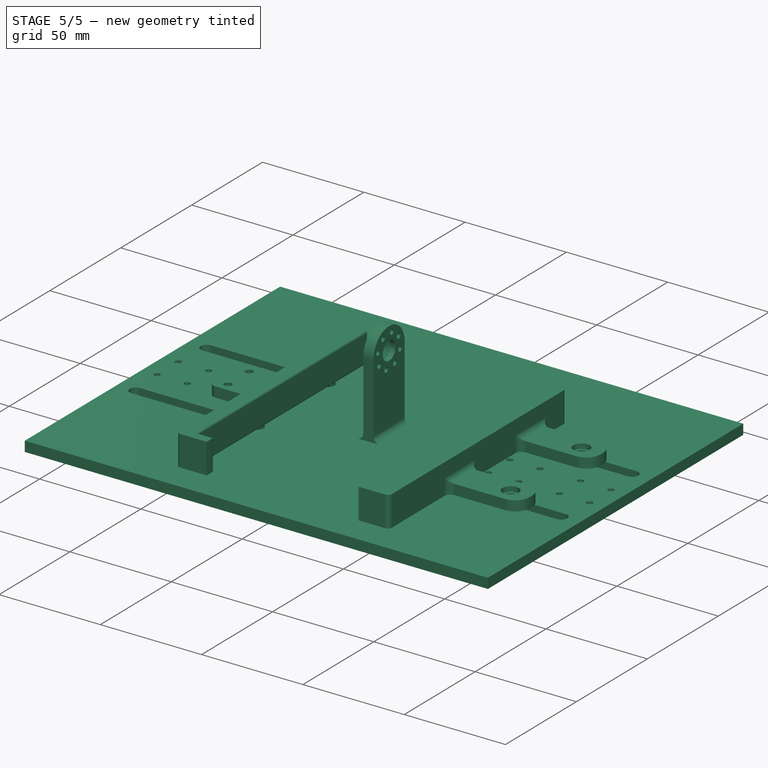
[diagram: stage 5 of 5 — iso view after this stage's code; geometry added in this stage tinted green]
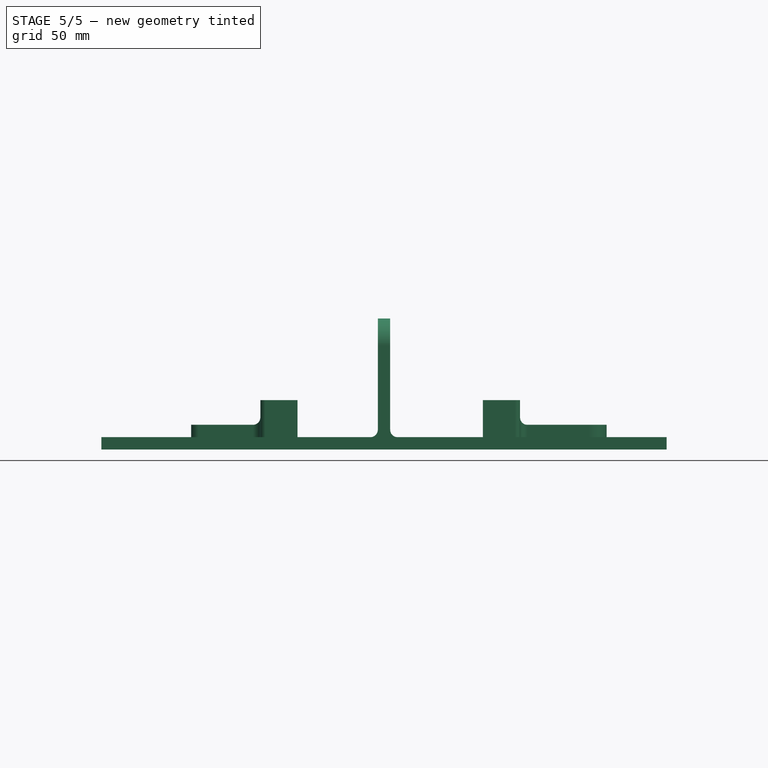
[diagram: stage 5 of 5 — front view after this stage's code; geometry added in this stage tinted green]
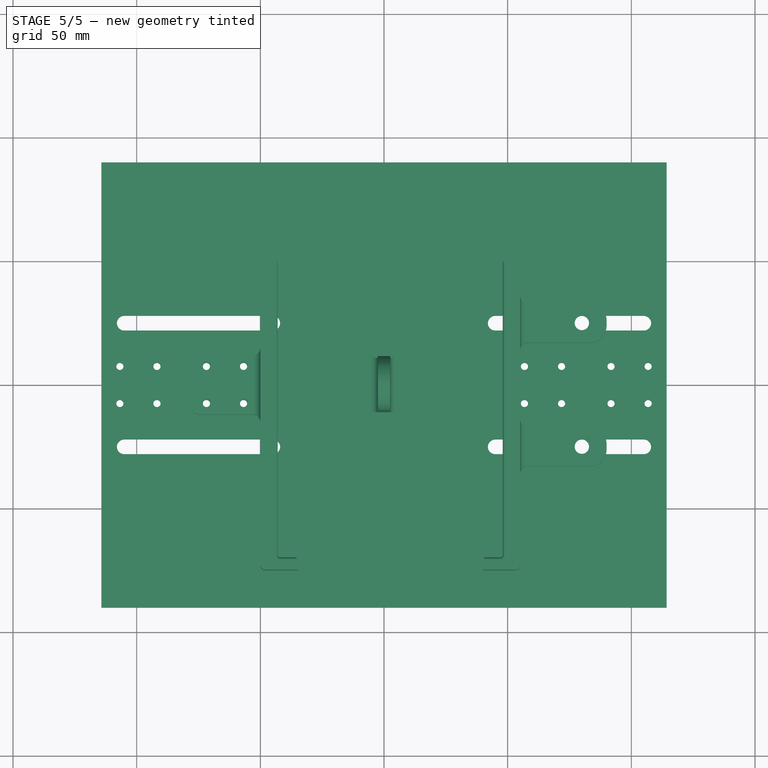
[diagram: stage 5 of 5 — top view after this stage's code; geometry added in this stage tinted green]
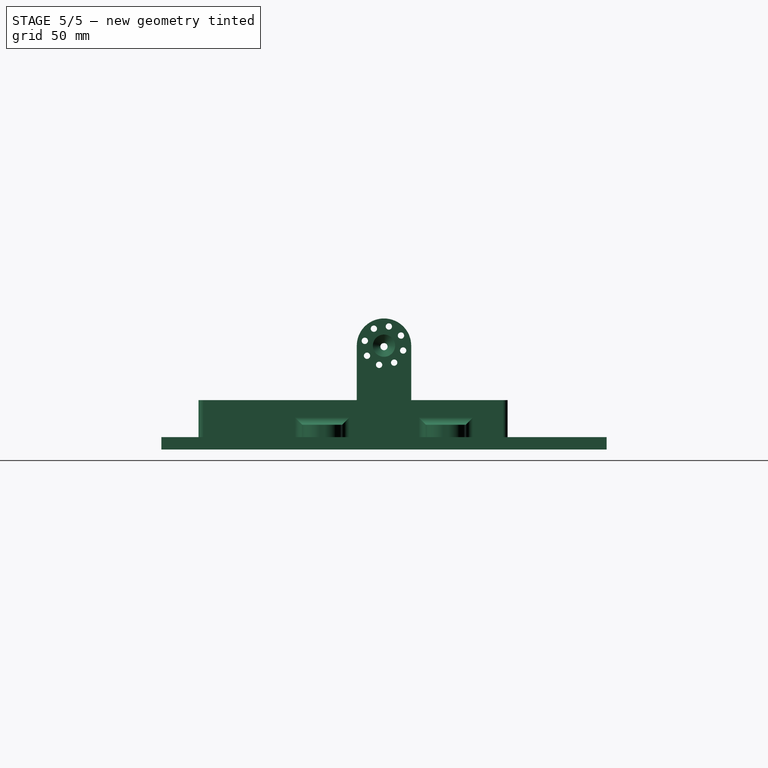
[diagram: stage 5 of 5 — right view after this stage's code; geometry added in this stage tinted green]
FEATURE [Sketcher::SketchObject] Sketch013
  ArcFitTolerance = 1e-06
  AttachmentSupport = -> [Pad003]
  ExternalTypes = [0]
  FullyConstrained = true
  MakeInternals = false
  MapMode = 5
  Placement = pos=(0,0,5) rot=(0,0,1;0rad)
  _ExternalGeoVersion = 1
  sketch-geometry (5):
    g0: GeomPoint [constr] X=0 Y=0 Z=0
    g1: Circle CenterX=7.5 CenterY=7.5 CenterZ=0 NormalX=0 NormalY=0 NormalZ=1 AngleXU=0 Radius=1.1
    g2: Circle CenterX=-7.5 CenterY=7.5 CenterZ=0 NormalX=0 NormalY=0 NormalZ=1 AngleXU=0 Radius=1.1
    g3: Circle CenterX=-7.5 CenterY=-7.5 CenterZ=0 NormalX=0 NormalY=0 NormalZ=1 AngleXU=0 Radius=1.1
    g4: Circle CenterX=7.5 CenterY=-7.5 CenterZ=0 NormalX=0 NormalY=0 NormalZ=1 AngleXU=0 Radius=1.1
  constraints (12):
    c: Symmetric(g1,g3,g0)
    c: Distance(g4,g3) = 15
    c: Distance(g3,g2) = 15
    c: Coincident(g0,g-1)
    c: Diameter(g1) = 2.2
    c: Equal(g1,g2)
    c: Equal(g2,g3)
    c: Equal(g3,g4)
    c: DistanceX(g2,g1) = 15
    c: DistanceY(g4,g1) = 15
    c: Distance(g4,g-2) = 7.5
    c: Distance(g2,g-1) = 7.5
FEATURE [PartDesign::Hole] Hole005
  BaseFeature = -> Pad003
  BaseProfileType = 7
  CustomThreadClearance = 0
  Depth = 5
  DepthType = 0
  Diameter = 2.9
  DrillForDepth = false
  DrillPoint = 1
  DrillPointAngle = 118
  HoleCutCountersinkAngle = 90
  HoleCutCustomValues = false
  HoleCutDepth = 0
  HoleCutDiameter = 0
  HoleCutType = 0
  ModelThread = false
  Profile = -> Sketch013
  Refine = true
  Suppressed = false
  Tapered = false
  TaperedAngle = 90
  ThreadClass = 0
  ThreadDepth = 5
  ThreadDepthType = 0
  ThreadDiameter = 2.5
  ThreadDirection = 0
  ThreadFit = 0
  ThreadSize = 8
  ThreadType = 1
  Threaded = false
  UseCustomThreadClearance = false
FEATURE [Sketcher::SketchObject] Sketch014
  ArcFitTolerance = 1e-06
  AttachmentSupport = -> [Hole005]
  ExternalTypes = [0]
  FullyConstrained = true
  MakeInternals = false
  MapMode = 5
  Placement = pos=(0,0,5) rot=(0,0,1;0rad)
  _ExternalGeoVersion = 1
  sketch-geometry (5):
    g0: LineSegment StartX=-2.5 StartY=-11 StartZ=0 EndX=2.5 EndY=-11 EndZ=0
    g1: LineSegment StartX=2.5 StartY=-11 StartZ=0 EndX=2.5 EndY=11 EndZ=0
    g2: LineSegment StartX=2.5 StartY=11 StartZ=0 EndX=-2.5 EndY=11 EndZ=0
    g3: LineSegment StartX=-2.5 StartY=11 StartZ=0 EndX=-2.5 EndY=-11 EndZ=0
    g4: GeomPoint [constr] X=0 Y=0 Z=0
  constraints (12):
    c: Coincident(g0,g1)
    c: Coincident(g1,g2)
    c: Coincident(g2,g3)
    c: Coincident(g3,g0)
    c: Horizontal(g0)
    c: Horizontal(g2)
    c: Vertical(g1)
    c: Vertical(g3)
    c: Symmetric(g2,g0,g4)
    c: Distance(g1,g3) = 5
    c: Distance(g0,g2) = 22
    c: Coincident(g4,g-1)
FEATURE [PartDesign::Pad] Pad004
  BaseFeature = -> Hole005
  Direction = (0,0,1)
  Length = 37
  Length2 = 10
  Profile = -> Sketch014
  ReferenceAxis = -> Sketch014 [N_Axis]
  Refine = true
  SideType = 0
  Suppressed = false
  Type = 0
  Type2 = 0
FEATURE [PartDesign::Fillet] Fillet
  Base = -> Pad004 [Edge23,Edge21]
  BaseFeature = -> Pad004
  Radius = 3
  Refine = true
  SupportTransform = false
  Suppressed = false
  UseAllEdges = false
FEATURE [Sketcher::SketchObject] Sketch015
  ArcFitTolerance = 1e-06
  AttachmentSupport = -> [Fillet]
  ExternalTypes = [0,0]
  FullyConstrained = true
  MakeInternals = false
  MapMode = 5
  Placement = pos=(-2.5,0,0) rot=(0.57735,-0.57735,-0.57735;2.0944rad)
  _ExternalGeoVersion = 1
  sketch-geometry (2):
    g0: ArcOfCircle CenterX=6.6e-13 CenterY=42 CenterZ=0 NormalX=0 NormalY=0 NormalZ=1 AngleXU=0 Radius=11 StartAngle=0 EndAngle=3.14159
    g1: LineSegment StartX=-11 StartY=42 StartZ=0 EndX=11 EndY=42 EndZ=0
  constraints (7):
    c: Coincident(g1,g0)
    c: Coincident(g1,g0)
    c: DistanceY(g-1,g0) = 42
    c: DistanceY(g-1,g0) = 42
    c: Distance(g0,g-2) = 11
    c: Distance(g0,g-2) = 11
    c: Distance(g0,g-1) = 31
FEATURE [PartDesign::Pad] Pad005
  BaseFeature = -> Fillet
  Direction = (-1,0,0)
  Length = 5
  Length2 = 10
  Profile = -> Sketch015
  ReferenceAxis = -> Sketch015 [N_Axis]
  Refine = true
  Reversed = true
  SideType = 0
  Suppressed = false
  Type = 0
  Type2 = 0
FEATURE [Sketcher::SketchObject] Sketch016
  ArcFitTolerance = 1e-06
  AttachmentSupport = -> [Pad005]
  ExternalTypes = [0]
  FullyConstrained = true
  MakeInternals = false
  MapMode = 5
  Placement = pos=(2.5,0,0) rot=(0.57735,0.57735,0.57735;2.0944rad)
  _ExternalGeoVersion = 1
  sketch-geometry (8):
    g0: Circle CenterX=-6.87 CenterY=37.91 CenterZ=0 NormalX=0 NormalY=0 NormalZ=1 AngleXU=0 Radius=0.75
    g1: Circle CenterX=-7.75 CenterY=43.96 CenterZ=0 NormalX=0 NormalY=0 NormalZ=1 AngleXU=0 Radius=0.75
    g2: Circle CenterX=-4.1 CenterY=48.87 CenterZ=0 NormalX=0 NormalY=0 NormalZ=1 AngleXU=0 Radius=0.75
    g3: Circle CenterX=1.96 CenterY=49.75 CenterZ=0 NormalX=0 NormalY=0 NormalZ=1 AngleXU=0 Radius=0.75
    g4: Circle CenterX=6.87 CenterY=46.09 CenterZ=0 NormalX=0 NormalY=0 NormalZ=1 AngleXU=0 Radius=0.75
    g5: Circle CenterX=7.75 CenterY=40.04 CenterZ=0 NormalX=0 NormalY=0 NormalZ=1 AngleXU=0 Radius=0.75
    g6: Circle CenterX=4.1 CenterY=35.13 CenterZ=0 NormalX=0 NormalY=0 NormalZ=1 AngleXU=0 Radius=0.75
    g7: Circle CenterX=-1.97 CenterY=34.24 CenterZ=0 NormalX=0 NormalY=0 NormalZ=1 AngleXU=0 Radius=0.75
  constraints (24):
    c: Diameter(g0) = 1.5
    c: Distance(g0,g-2) = 6.87
    c: Distance(g0,g-1) = 37.91
    c: Equal(g0,g1)
    c: Equal(g1,g2)
    c: Equal(g2,g3)
    c: Equal(g3,g4)
    c: Equal(g4,g5)
    c: Equal(g5,g6)
    c: Equal(g6,g7)
    c: Distance(g1,g-2) = 7.75
    c: Distance(g2,g-2) = 4.1
    c: Distance(g3,g-2) = 1.96
    c: Distance(g4,g-2) = 6.87
    c: Distance(g5,g-2) = 7.75
    c: Distance(g6,g-2) = 4.1
    c: Distance(g7,g-2) = 1.97
    c: Distance(g7,g-1) = 34.24
    c: DistanceY(g-1,g1) = 43.96
    c: DistanceY(g-1,g2) = 48.87
    c: DistanceY(g-1,g3) = 49.75
    c: DistanceY(g-1,g4) = 46.09
    c: DistanceY(g-1,g5) = 40.04
    c: DistanceY(g-1,g6) = 35.13
FEATURE [PartDesign::Hole] Hole006
  BaseFeature = -> Pad005
  BaseProfileType = 7
  CustomThreadClearance = 0
  Depth = 5
  DepthType = 0
  Diameter = 2.552
  DrillForDepth = false
  DrillPoint = 1
  DrillPointAngle = 118
  HoleCutCountersinkAngle = 90
  HoleCutCustomValues = false
  HoleCutDepth = 0
  HoleCutDiameter = 0
  HoleCutType = 0
  ModelThread = false
  Profile = -> Sketch016
  Refine = true
  Suppressed = false
  Tapered = false
  TaperedAngle = 90
  ThreadClass = 0
  ThreadDepth = 5
  ThreadDepthType = 0
  ThreadDiameter = 2.2
  ThreadDirection = 0
  ThreadFit = 2
  ThreadSize = 7
  ThreadType = 1
  Threaded = false
  UseCustomThreadClearance = false
FEATURE [Sketcher::SketchObject] Sketch017
  ArcFitTolerance = 1e-06
  AttachmentSupport = -> [Hole006]
  ExternalTypes = [0,0]
  FullyConstrained = true
  MakeInternals = false
  MapMode = 5
  Placement = pos=(2.5,0,0) rot=(0.57735,0.57735,0.57735;2.0944rad)
  _ExternalGeoVersion = 1
  sketch-geometry (1):
    g0: Circle CenterX=0 CenterY=42 CenterZ=0 NormalX=0 NormalY=0 NormalZ=1 AngleXU=0 Radius=5.5
  constraints (3):
    c: Diameter(g0) = 11
    c: PointOnObject(g0,g-2)
    c: DistanceY(g-1,g0) = 42
FEATURE [PartDesign::Hole] Hole002
  BaseFeature = -> Hole006
  BaseProfileType = 7
  CustomThreadClearance = 0
  Depth = 2.5
  DepthType = 0
  Diameter = 9
  DrillForDepth = false
  DrillPoint = 1
  DrillPointAngle = 118
  HoleCutCountersinkAngle = 90
  HoleCutCustomValues = false
  HoleCutDepth = 0
  HoleCutDiameter = 0
  HoleCutType = 0
  ModelThread = false
  Profile = -> Sketch017
  Refine = true
  Suppressed = false
  Tapered = false
  TaperedAngle = 90
  ThreadClass = 0
  ThreadDepth = 2.5
  ThreadDepthType = 0
  ThreadDiameter = 8
  ThreadDirection = 0
  ThreadFit = 0
  ThreadSize = 16
  ThreadType = 1
  Threaded = false
  UseCustomThreadClearance = false
FEATURE [Sketcher::SketchObject] Sketch018
  ArcFitTolerance = 1e-06
  AttachmentSupport = -> [Hole002]
  ExternalTypes = [0]
  FullyConstrained = true
  MakeInternals = false
  MapMode = 5
  Placement = pos=(-2.5,0,0) rot=(0.57735,-0.57735,-0.57735;2.0944rad)
  _ExternalGeoVersion = 1
  sketch-geometry (1):
    g0: Circle CenterX=0 CenterY=41.6 CenterZ=0 NormalX=0 NormalY=0 NormalZ=1 AngleXU=0 Radius=1.1
  constraints (3):
    c: Diameter(g0) = 2.2
    c: PointOnObject(g0,g-2)
    c: DistanceY(g-1,g0) = 41.6
FEATURE [PartDesign::Hole] Hole007
  BaseFeature = -> Hole002
  BaseProfileType = 7
  CustomThreadClearance = 0
  Depth = 2.5
  DepthType = 0
  Diameter = 2.9
  DrillForDepth = false
  DrillPoint = 1
  DrillPointAngle = 118
  HoleCutCountersinkAngle = 90
  HoleCutCustomValues = false
  HoleCutDepth = 0
  HoleCutDiameter = 0
  HoleCutType = 0
  ModelThread = false
  Profile = -> Sketch018
  Refine = true
  Suppressed = false
  Tapered = false
  TaperedAngle = 90
  ThreadClass = 0
  ThreadDepth = 2.5
  ThreadDepthType = 0
  ThreadDiameter = 2.5
  ThreadDirection = 0
  ThreadFit = 0
  ThreadSize = 8
  ThreadType = 1
  Threaded = false
  UseCustomThreadClearance = false
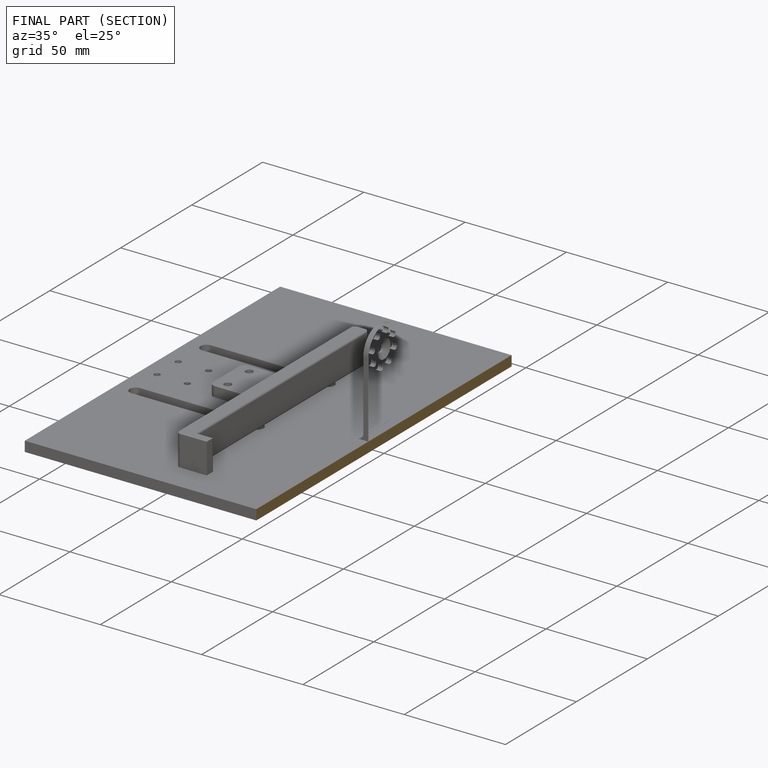
[diagram: finished part — half-section view (interior)]
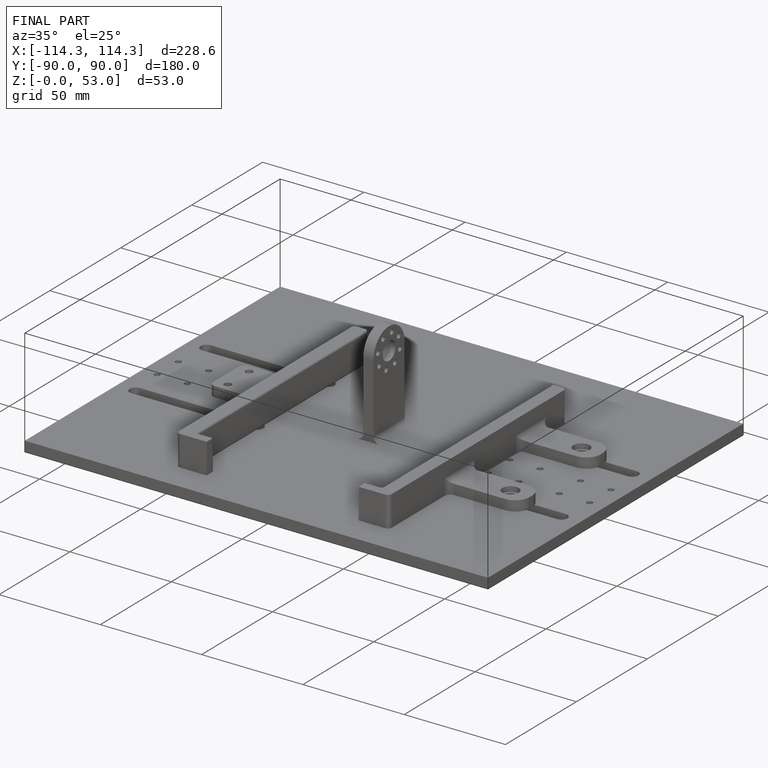
[diagram: finished part — iso view with bounding-box wireframe]
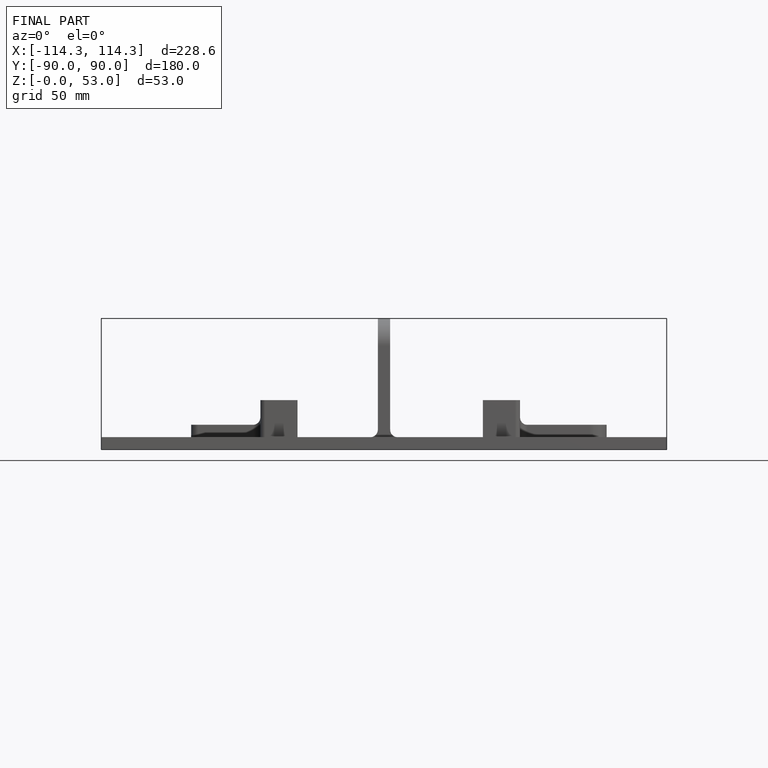
[diagram: finished part — front view with bounding-box wireframe]
